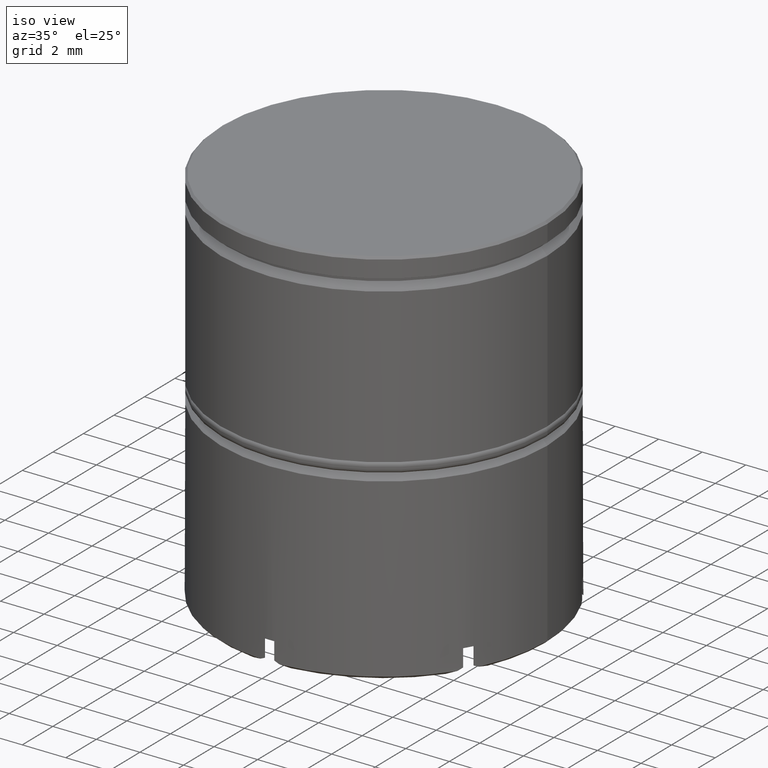
[diagram: clean part render]
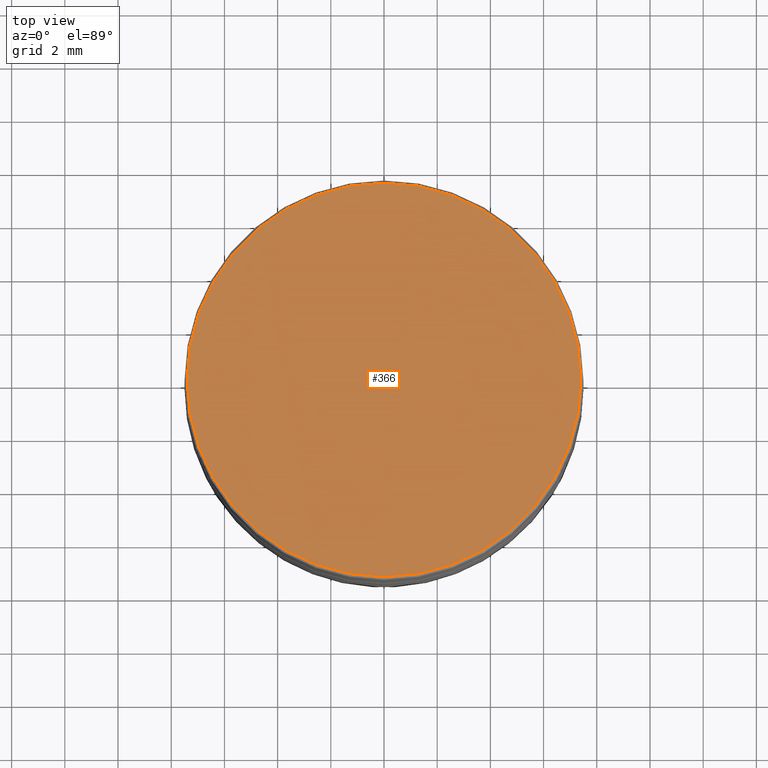
[diagram: tour spotlight — one face highlighted and labeled with its STEP entity id]
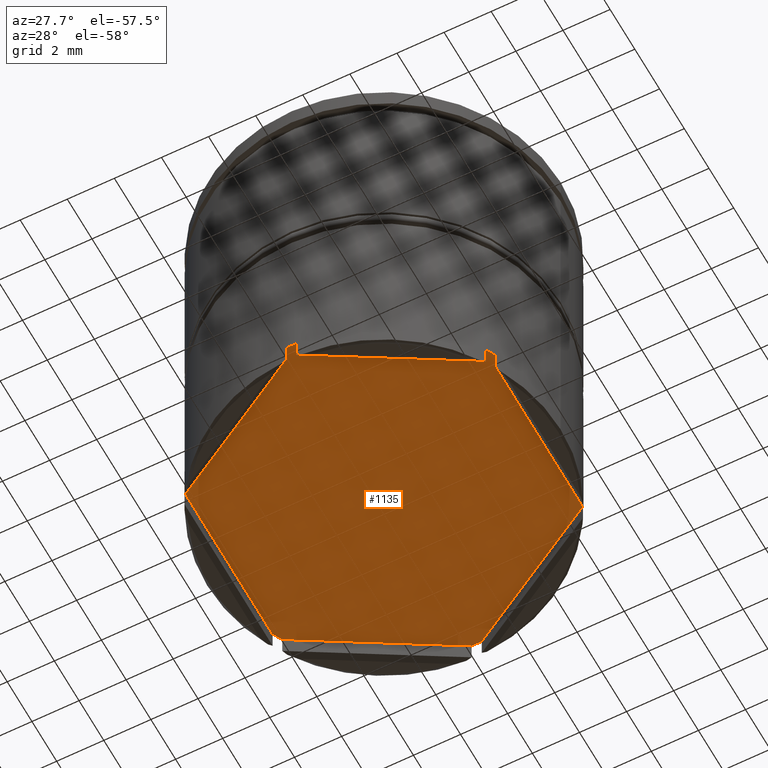
[diagram: tour spotlight — one face highlighted and labeled with its STEP entity id]
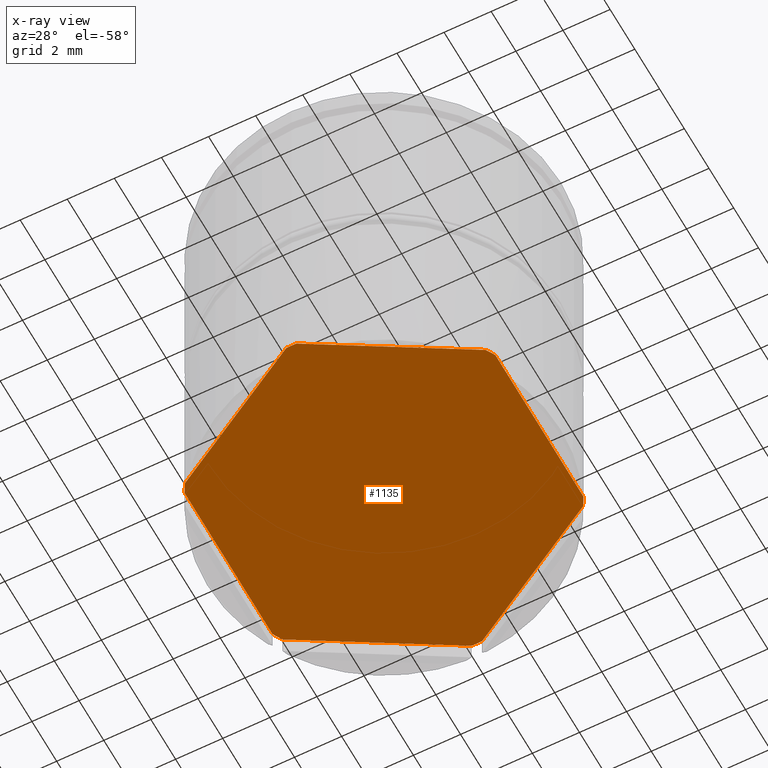
[diagram: x-ray of the same camera — body ghosted, this tour face saturated]
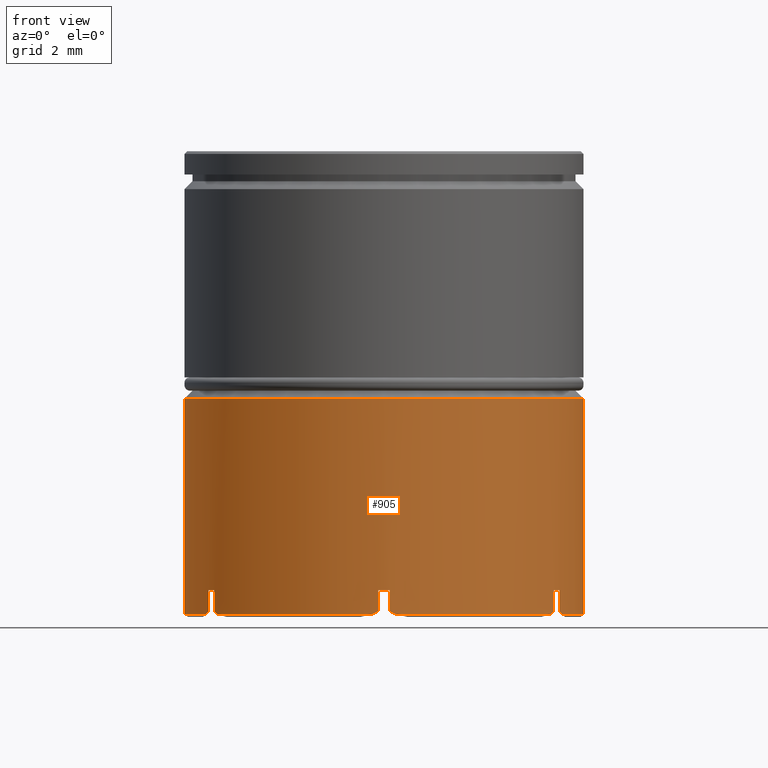
[diagram: tour spotlight — one face highlighted and labeled with its STEP entity id]
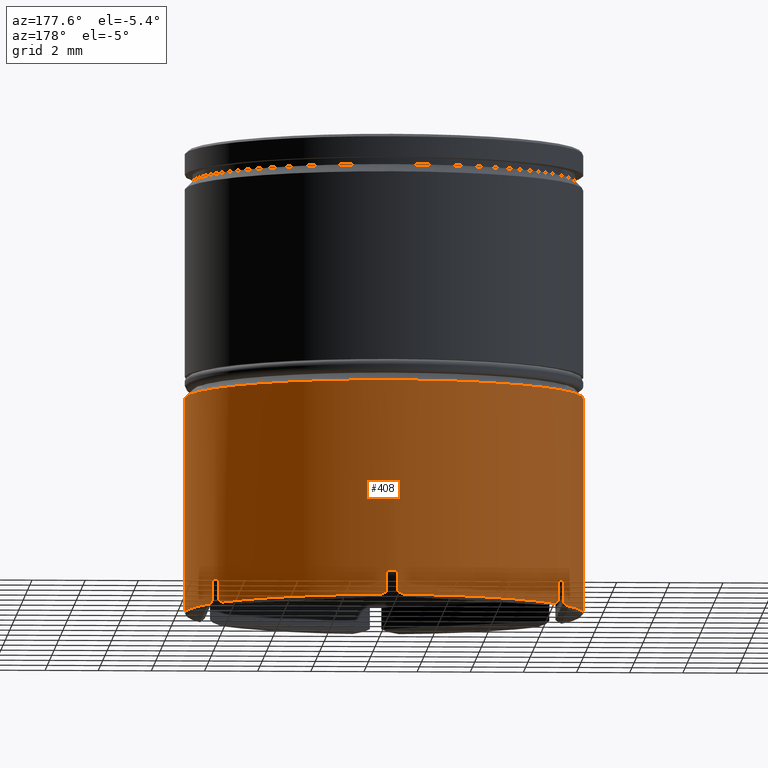
[diagram: tour spotlight — one face highlighted and labeled with its STEP entity id]
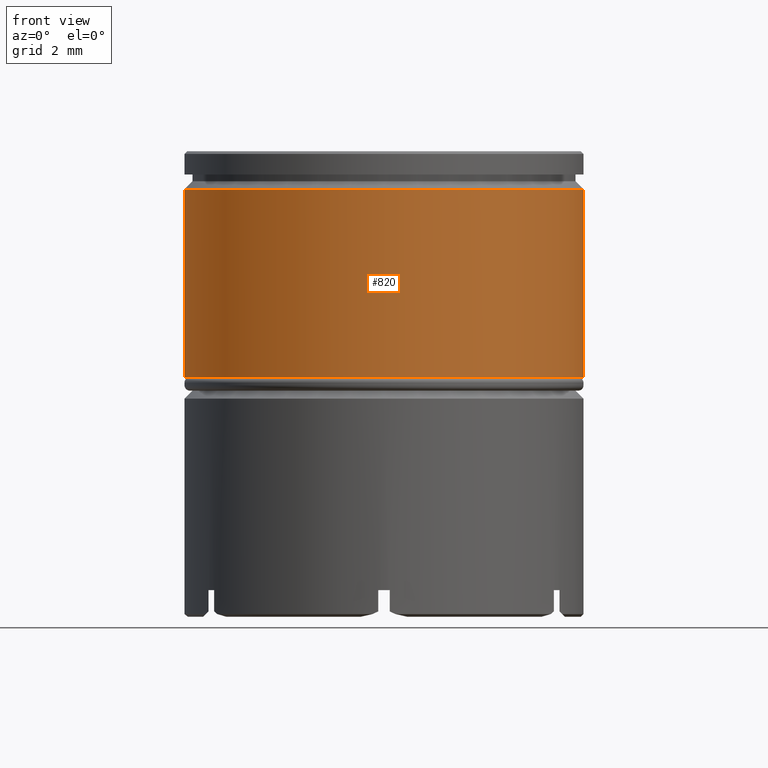
[diagram: tour spotlight — one face highlighted and labeled with its STEP entity id]
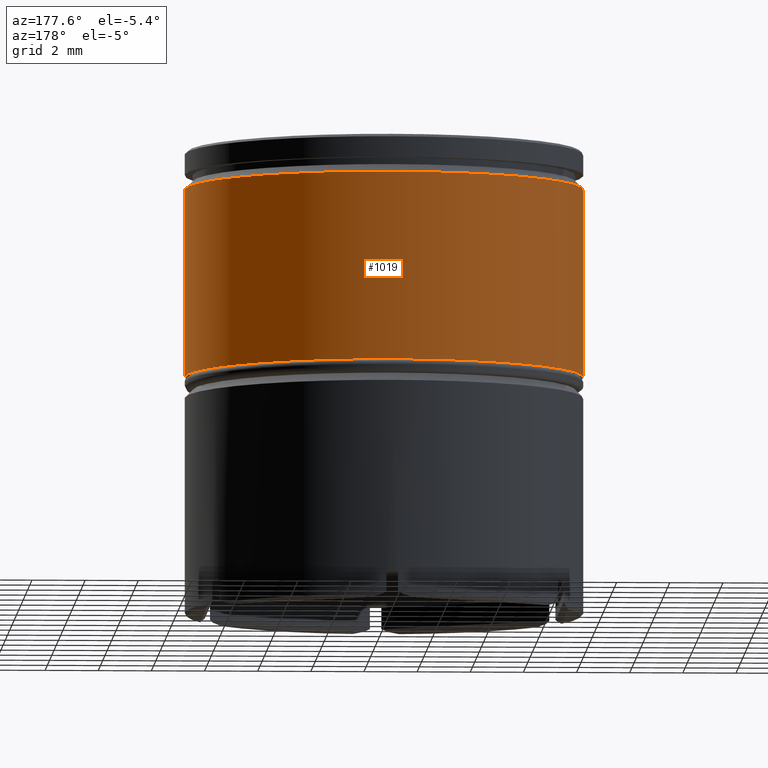
[diagram: tour spotlight — one face highlighted and labeled with its STEP entity id]
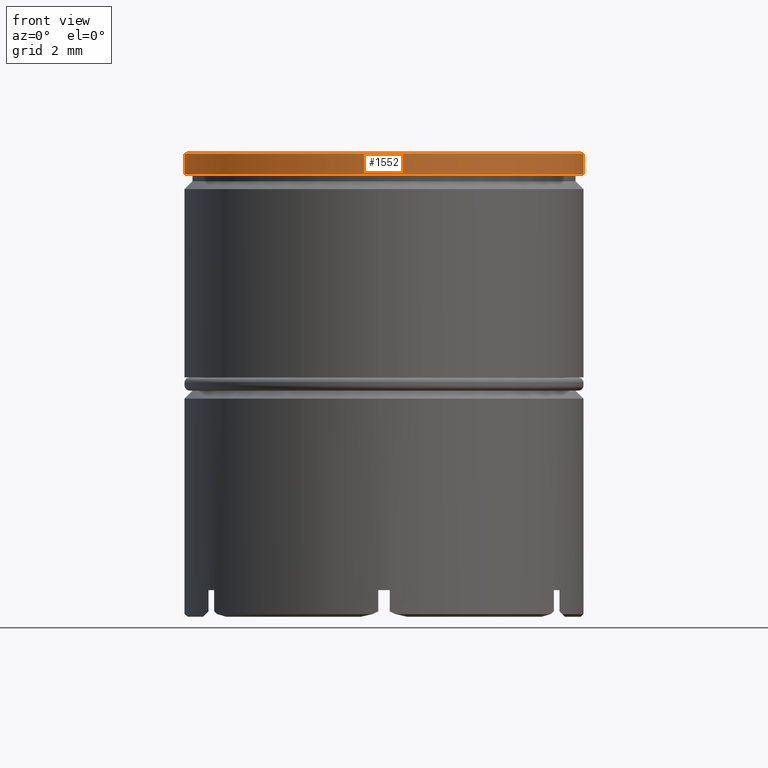
[diagram: tour spotlight — one face highlighted and labeled with its STEP entity id]
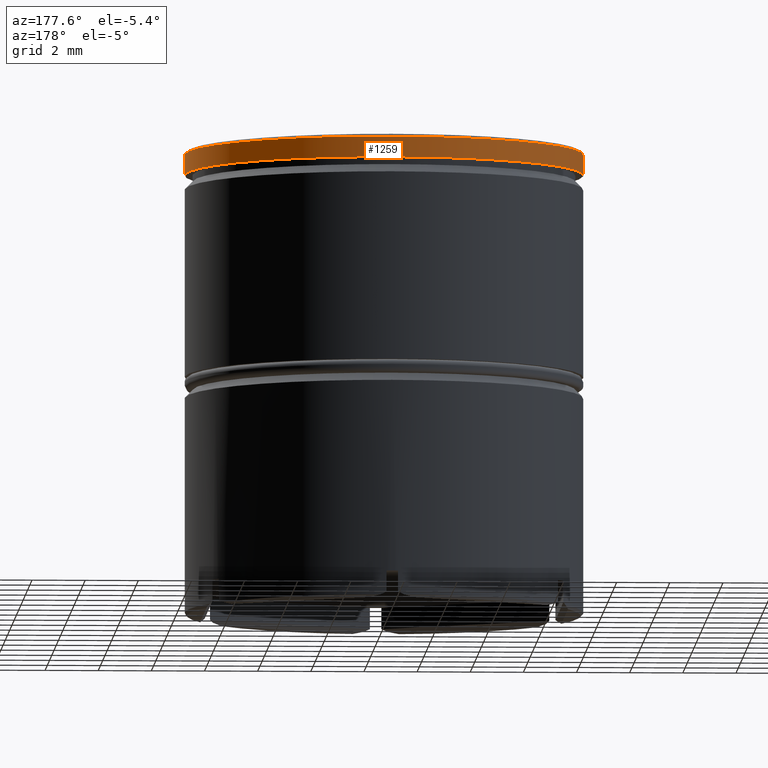
[diagram: tour spotlight — one face highlighted and labeled with its STEP entity id]
A machine part: a face-by-face anatomy tour. The part has 53 B-rep faces; the first image is the clean iso view, then the 8 largest visible faces are spotlighted one at a time (largest first), each with its STEP entity span.

Face 1 — top view, entity #366. In plain terms, the highlighted planar face has unit normal (0, -0, 1).
Definition (entity closure, byte-faithful):
#46 = CARTESIAN_POINT ( 'NONE',  ( 7.399999999999994138, 9.123618653647777215E-16, 0.000000000000000000 ) ) ;
#215 = AXIS2_PLACEMENT_3D ( 'NONE', #1554, #1435, #1331 ) ;
#218 = AXIS2_PLACEMENT_3D ( 'NONE', #1272, #365, #649 ) ;
#224 = PLANE ( 'NONE',  #1382 ) ;
#284 = ORIENTED_EDGE ( 'NONE', *, *, #302, .T. ) ;
#302 = EDGE_CURVE ( 'NONE', #644, #780, #645, .T. ) ;
#361 = DIRECTION ( 'NONE',  ( 0.000000000000000000, -0.000000000000000000, 1.000000000000000000 ) ) ;
#365 = DIRECTION ( 'NONE',  ( -0.000000000000000000, -0.000000000000000000, 1.000000000000000000 ) ) ;
#366 = ADVANCED_FACE ( 'NONE', ( #466 ), #224, .T. ) ;
#466 = FACE_OUTER_BOUND ( 'NONE', #1115, .T. ) ;
#644 = VERTEX_POINT ( 'NONE', #46 ) ;
#645 = CIRCLE ( 'NONE', #215, 7.399999999999994138 ) ;
#649 = DIRECTION ( 'NONE',  ( 1.000000000000000000, 0.000000000000000000, 0.000000000000000000 ) ) ;
#780 = VERTEX_POINT ( 'NONE', #1043 ) ;
#1016 = EDGE_CURVE ( 'NONE', #780, #644, #1438, .T. ) ;
#1043 = CARTESIAN_POINT ( 'NONE',  ( -7.399999999999994138, 0.000000000000000000, 0.000000000000000000 ) ) ;
#1115 = EDGE_LOOP ( 'NONE', ( #1591, #284 ) ) ;
#1272 = CARTESIAN_POINT ( 'NONE',  ( 0.000000000000000000, 0.000000000000000000, 0.000000000000000000 ) ) ;
#1331 = DIRECTION ( 'NONE',  ( 1.000000000000000000, 0.000000000000000000, 0.000000000000000000 ) ) ;
#1350 = CARTESIAN_POINT ( 'NONE',  ( 0.000000000000000000, 0.000000000000000000, 0.000000000000000000 ) ) ;
#1382 = AXIS2_PLACEMENT_3D ( 'NONE', #1350, #361, #1455 ) ;
#1435 = DIRECTION ( 'NONE',  ( -0.000000000000000000, -0.000000000000000000, 1.000000000000000000 ) ) ;
#1438 = CIRCLE ( 'NONE', #218, 7.399999999999994138 ) ;
#1455 = DIRECTION ( 'NONE',  ( 1.000000000000000000, 0.000000000000000000, 0.000000000000000000 ) ) ;
#1554 = CARTESIAN_POINT ( 'NONE',  ( 0.000000000000000000, 0.000000000000000000, 0.000000000000000000 ) ) ;
#1591 = ORIENTED_EDGE ( 'NONE', *, *, #1016, .T. ) ;

Face 2 — auxiliary view, entity #1135. An x-ray twin of the same camera follows (body ghosted, this face saturated) — the face is partly hidden behind the body. In plain terms, the highlighted planar face has unit normal (0, 0, -1).
Definition (entity closure, byte-faithful):
#16 = EDGE_CURVE ( 'NONE', #146, #213, #191, .T. ) ;
#38 = DIRECTION ( 'NONE',  ( -0.000000000000000000, -0.000000000000000000, 1.000000000000000000 ) ) ;
#40 = LINE ( 'NONE', #930, #402 ) ;
#63 = CARTESIAN_POINT ( 'NONE',  ( 6.600000000000004974, 3.810511776651531957, -16.50000000000000000 ) ) ;
#80 = CARTESIAN_POINT ( 'NONE',  ( 0.2149554298195399393, -7.496918978032981684, -16.50000000000000000 ) ) ;
#91 = ORIENTED_EDGE ( 'NONE', *, *, #1453, .T. ) ;
#95 = VERTEX_POINT ( 'NONE', #1004 ) ;
#99 = CARTESIAN_POINT ( 'NONE',  ( 6.600000000000005862, -3.810511776651533733, -16.50000000000000000 ) ) ;
#108 = CARTESIAN_POINT ( 'NONE',  ( 0.000000000000000000, 0.000000000000000000, -16.50000000000000000 ) ) ;
#128 = EDGE_CURVE ( 'NONE', #95, #1097, #628, .T. ) ;
#142 = AXIS2_PLACEMENT_3D ( 'NONE', #435, #426, #924 ) ;
#146 = VERTEX_POINT ( 'NONE', #781 ) ;
#163 = LINE ( 'NONE', #99, #806 ) ;
#166 = DIRECTION ( 'NONE',  ( -1.000000000000000000, 0.000000000000000000, 0.000000000000000000 ) ) ;
#181 = CARTESIAN_POINT ( 'NONE',  ( -4.310144132208485433E-16, -7.621023553303065690, -16.50000000000000000 ) ) ;
#190 = CARTESIAN_POINT ( 'NONE',  ( -0.2149554298195403834, -7.496918978032981684, -16.50000000000000000 ) ) ;
#191 = LINE ( 'NONE', #63, #1308 ) ;
#194 = CARTESIAN_POINT ( 'NONE',  ( 0.000000000000000000, 0.000000000000000000, -16.50000000000000000 ) ) ;
#213 = VERTEX_POINT ( 'NONE', #1418 ) ;
#227 = ORIENTED_EDGE ( 'NONE', *, *, #691, .F. ) ;
#271 = CARTESIAN_POINT ( 'NONE',  ( -6.600000000000003197, -3.562302626111366610, -16.50000000000000000 ) ) ;
#276 = CARTESIAN_POINT ( 'NONE',  ( 0.000000000000000000, 0.000000000000000000, -16.50000000000000000 ) ) ;
#296 = VERTEX_POINT ( 'NONE', #431 ) ;
#298 = CIRCLE ( 'NONE', #1231, 7.500000000000000000 ) ;
#309 = CIRCLE ( 'NONE', #840, 7.500000000000000000 ) ;
#322 = DIRECTION ( 'NONE',  ( -0.000000000000000000, -0.000000000000000000, 1.000000000000000000 ) ) ;
#334 = EDGE_CURVE ( 'NONE', #1579, #474, #40, .T. ) ;
#385 = ORIENTED_EDGE ( 'NONE', *, *, #970, .F. ) ;
#388 = CARTESIAN_POINT ( 'NONE',  ( 0.000000000000000000, 0.000000000000000000, -16.50000000000000000 ) ) ;
#402 = VECTOR ( 'NONE', #424, 1000.000000000000000 ) ;
#416 = CARTESIAN_POINT ( 'NONE',  ( 6.385044570180465229, 3.934616351921614186, -16.50000000000000000 ) ) ;
#424 = DIRECTION ( 'NONE',  ( 0.000000000000000000, 1.000000000000000000, 0.000000000000000000 ) ) ;
#426 = DIRECTION ( 'NONE',  ( 0.000000000000000000, 0.000000000000000000, -1.000000000000000000 ) ) ;
#431 = CARTESIAN_POINT ( 'NONE',  ( -0.2149554298195408275, 7.496918978032982572, -16.50000000000000000 ) ) ;
#435 = CARTESIAN_POINT ( 'NONE',  ( 0.000000000000000000, 0.000000000000000000, -16.50000000000000000 ) ) ;
#444 = ORIENTED_EDGE ( 'NONE', *, *, #1183, .T. ) ;
#474 = VERTEX_POINT ( 'NONE', #706 ) ;
#481 = CARTESIAN_POINT ( 'NONE',  ( 0.000000000000000000, 0.000000000000000000, -16.50000000000000000 ) ) ;
#487 = ORIENTED_EDGE ( 'NONE', *, *, #334, .T. ) ;
#531 = ORIENTED_EDGE ( 'NONE', *, *, #818, .F. ) ;
#547 = PLANE ( 'NONE',  #142 ) ;
#609 = DIRECTION ( 'NONE',  ( -0.000000000000000000, -0.000000000000000000, 1.000000000000000000 ) ) ;
#628 = LINE ( 'NONE', #753, #643 ) ;
#643 = VECTOR ( 'NONE', #1409, 1000.000000000000000 ) ;
#670 = FACE_OUTER_BOUND ( 'NONE', #1532, .T. ) ;
#682 = VECTOR ( 'NONE', #1210, 1000.000000000000114 ) ;
#685 = AXIS2_PLACEMENT_3D ( 'NONE', #276, #1058, #786 ) ;
#691 = EDGE_CURVE ( 'NONE', #146, #1097, #745, .T. ) ;
#700 = EDGE_CURVE ( 'NONE', #1440, #1528, #1187, .T. ) ;
#702 = CARTESIAN_POINT ( 'NONE',  ( -6.385044570180463452, 3.934616351921620403, -16.50000000000000000 ) ) ;
#706 = CARTESIAN_POINT ( 'NONE',  ( -6.600000000000003197, 3.562302626111366610, -16.50000000000000000 ) ) ;
#713 = VERTEX_POINT ( 'NONE', #1325 ) ;
#724 = AXIS2_PLACEMENT_3D ( 'NONE', #1329, #38, #166 ) ;
#745 = CIRCLE ( 'NONE', #724, 7.500000000000000000 ) ;
#753 = CARTESIAN_POINT ( 'NONE',  ( 0.000000000000000000, 7.621023553303065690, -16.50000000000000000 ) ) ;
#761 = ORIENTED_EDGE ( 'NONE', *, *, #1280, .F. ) ;
#781 = CARTESIAN_POINT ( 'NONE',  ( 6.600000000000003197, 3.562302626111367498, -16.50000000000000000 ) ) ;
#786 = DIRECTION ( 'NONE',  ( -1.000000000000000000, 0.000000000000000000, 0.000000000000000000 ) ) ;
#787 = DIRECTION ( 'NONE',  ( -0.8660254037844385966, 0.5000000000000001110, 0.000000000000000000 ) ) ;
#806 = VECTOR ( 'NONE', #983, 1000.000000000000000 ) ;
#818 = EDGE_CURVE ( 'NONE', #95, #296, #1256, .T. ) ;
#839 = ORIENTED_EDGE ( 'NONE', *, *, #128, .T. ) ;
#840 = AXIS2_PLACEMENT_3D ( 'NONE', #108, #1380, #864 ) ;
#843 = EDGE_CURVE ( 'NONE', #1579, #1528, #1458, .T. ) ;
#864 = DIRECTION ( 'NONE',  ( -1.000000000000000000, 0.000000000000000000, 0.000000000000000000 ) ) ;
#886 = VECTOR ( 'NONE', #787, 1000.000000000000000 ) ;
#914 = AXIS2_PLACEMENT_3D ( 'NONE', #194, #322, #965 ) ;
#923 = CIRCLE ( 'NONE', #685, 7.500000000000000000 ) ;
#924 = DIRECTION ( 'NONE',  ( -1.000000000000000000, 0.000000000000000000, -0.000000000000000000 ) ) ;
#930 = CARTESIAN_POINT ( 'NONE',  ( -6.600000000000004974, -3.810511776651531513, -16.50000000000000000 ) ) ;
#965 = DIRECTION ( 'NONE',  ( -1.000000000000000000, 7.283063041541026905E-14, 0.000000000000000000 ) ) ;
#967 = AXIS2_PLACEMENT_3D ( 'NONE', #481, #609, #1600 ) ;
#970 = EDGE_CURVE ( 'NONE', #1444, #474, #298, .T. ) ;
#983 = DIRECTION ( 'NONE',  ( -0.8660254037844387076, -0.4999999999999998335, 0.000000000000000000 ) ) ;
#1004 = CARTESIAN_POINT ( 'NONE',  ( 0.2149554298195403834, 7.496918978032981684, -16.50000000000000000 ) ) ;
#1058 = DIRECTION ( 'NONE',  ( -0.000000000000000000, -0.000000000000000000, 1.000000000000000000 ) ) ;
#1092 = ORIENTED_EDGE ( 'NONE', *, *, #16, .T. ) ;
#1097 = VERTEX_POINT ( 'NONE', #416 ) ;
#1135 = ADVANCED_FACE ( 'NONE', ( #670 ), #547, .T. ) ;
#1183 = EDGE_CURVE ( 'NONE', #713, #1624, #163, .T. ) ;
#1187 = LINE ( 'NONE', #181, #886 ) ;
#1189 = DIRECTION ( 'NONE',  ( 1.138117120255423023E-16, -1.000000000000000000, 0.000000000000000000 ) ) ;
#1210 = DIRECTION ( 'NONE',  ( 0.8660254037844387076, 0.4999999999999997780, 0.000000000000000000 ) ) ;
#1231 = AXIS2_PLACEMENT_3D ( 'NONE', #388, #1620, #1263 ) ;
#1256 = CIRCLE ( 'NONE', #914, 7.500000000000000000 ) ;
#1263 = DIRECTION ( 'NONE',  ( -1.000000000000000000, -5.595524044110788964E-14, 0.000000000000000000 ) ) ;
#1280 = EDGE_CURVE ( 'NONE', #1440, #1624, #309, .T. ) ;
#1308 = VECTOR ( 'NONE', #1189, 1000.000000000000000 ) ;
#1325 = CARTESIAN_POINT ( 'NONE',  ( 6.385044570180463452, -3.934616351921617738, -16.50000000000000000 ) ) ;
#1329 = CARTESIAN_POINT ( 'NONE',  ( 0.000000000000000000, 0.000000000000000000, -16.50000000000000000 ) ) ;
#1380 = DIRECTION ( 'NONE',  ( -0.000000000000000000, -0.000000000000000000, 1.000000000000000000 ) ) ;
#1409 = DIRECTION ( 'NONE',  ( 0.8660254037844385966, -0.5000000000000001110, 0.000000000000000000 ) ) ;
#1417 = ORIENTED_EDGE ( 'NONE', *, *, #700, .T. ) ;
#1418 = CARTESIAN_POINT ( 'NONE',  ( 6.600000000000003197, -3.562302626111365722, -16.50000000000000000 ) ) ;
#1440 = VERTEX_POINT ( 'NONE', #190 ) ;
#1444 = VERTEX_POINT ( 'NONE', #702 ) ;
#1453 = EDGE_CURVE ( 'NONE', #1444, #296, #1594, .T. ) ;
#1454 = ORIENTED_EDGE ( 'NONE', *, *, #843, .F. ) ;
#1458 = CIRCLE ( 'NONE', #967, 7.500000000000000000 ) ;
#1470 = CARTESIAN_POINT ( 'NONE',  ( -6.600000000000004974, 3.810511776651534621, -16.50000000000000000 ) ) ;
#1528 = VERTEX_POINT ( 'NONE', #1559 ) ;
#1532 = EDGE_LOOP ( 'NONE', ( #487, #385, #91, #531, #839, #227, #1092, #1571, #444, #761, #1417, #1454 ) ) ;
#1559 = CARTESIAN_POINT ( 'NONE',  ( -6.385044570180465229, -3.934616351921614186, -16.50000000000000000 ) ) ;
#1571 = ORIENTED_EDGE ( 'NONE', *, *, #1581, .F. ) ;
#1579 = VERTEX_POINT ( 'NONE', #271 ) ;
#1581 = EDGE_CURVE ( 'NONE', #713, #213, #923, .T. ) ;
#1594 = LINE ( 'NONE', #1470, #682 ) ;
#1600 = DIRECTION ( 'NONE',  ( -1.000000000000000000, 0.000000000000000000, 0.000000000000000000 ) ) ;
#1620 = DIRECTION ( 'NONE',  ( -0.000000000000000000, -0.000000000000000000, 1.000000000000000000 ) ) ;
#1624 = VERTEX_POINT ( 'NONE', #80 ) ;

Face 3 — front view, entity #905. In plain terms, the highlighted cylindrical surface (partial cylindrical patch) has radius 7.5 mm, axis along (-0, -0, 1).
Definition (entity closure, byte-faithful):
#3 = VERTEX_POINT ( 'NONE', #1071 ) ;
#15 = CIRCLE ( 'NONE', #221, 7.500000000000000000 ) ;
#21 = CIRCLE ( 'NONE', #1161, 7.500000000000000000 ) ;
#27 = CARTESIAN_POINT ( 'NONE',  ( -6.600000000000004974, -3.562302626111364834, -17.30000000000000426 ) ) ;
#37 = VERTEX_POINT ( 'NONE', #42 ) ;
#41 = VECTOR ( 'NONE', #565, 1000.000000000000000 ) ;
#42 = CARTESIAN_POINT ( 'NONE',  ( -0.4310960961347485298, -7.487600159991007587, -17.40000000000000568 ) ) ;
#48 = CARTESIAN_POINT ( 'NONE',  ( 0.4310960961347314324, -7.487600159991010251, -17.40000000000000568 ) ) ;
#53 =( BOUNDED_CURVE ( )  B_SPLINE_CURVE ( 3, ( #138, #1422, #1391, #1156 ),
 .UNSPECIFIED., .F., .T. ) 
 B_SPLINE_CURVE_WITH_KNOTS ( ( 4, 4 ),
 ( 2.646658527248899606, 2.675505055610964078 ),
 .UNSPECIFIED. ) 
 CURVE ( )  GEOMETRIC_REPRESENTATION_ITEM ( )  RATIONAL_B_SPLINE_CURVE ( ( 1.000000000000000000, 0.9999306576855770956, 0.9999306576855770956, 1.000000000000000000 ) ) 
 REPRESENTATION_ITEM ( '' )  );
#54 = CARTESIAN_POINT ( 'NONE',  ( -6.600000000000004974, -3.562302626111364834, 0.000000000000000000 ) ) ;
#70 = CARTESIAN_POINT ( 'NONE',  ( 0.000000000000000000, 0.000000000000000000, -17.40000000000000568 ) ) ;
#71 = CARTESIAN_POINT ( 'NONE',  ( 0.000000000000000000, 0.000000000000000000, -17.40000000000000568 ) ) ;
#73 = AXIS2_PLACEMENT_3D ( 'NONE', #71, #1185, #1289 ) ;
#75 = VECTOR ( 'NONE', #534, 1000.000000000000000 ) ;
#76 = CARTESIAN_POINT ( 'NONE',  ( 0.000000000000000000, 0.000000000000000000, -9.299999999999998934 ) ) ;
#78 = FACE_OUTER_BOUND ( 'NONE', #559, .T. ) ;
#80 = CARTESIAN_POINT ( 'NONE',  ( 0.2149554298195399393, -7.496918978032981684, -16.50000000000000000 ) ) ;
#85 = EDGE_CURVE ( 'NONE', #1440, #601, #1322, .T. ) ;
#108 = CARTESIAN_POINT ( 'NONE',  ( 0.000000000000000000, 0.000000000000000000, -16.50000000000000000 ) ) ;
#138 = CARTESIAN_POINT ( 'NONE',  ( 6.600000000000004974, -3.562302626111363946, -17.30000000000000426 ) ) ;
#169 = DIRECTION ( 'NONE',  ( -0.000000000000000000, -0.000000000000000000, 1.000000000000000000 ) ) ;
#178 = CARTESIAN_POINT ( 'NONE',  ( -0.2149554298195403834, -7.496918978032981684, 0.000000000000000000 ) ) ;
#186 = CIRCLE ( 'NONE', #350, 7.500000000000000000 ) ;
#188 = ORIENTED_EDGE ( 'NONE', *, *, #323, .T. ) ;
#190 = CARTESIAN_POINT ( 'NONE',  ( -0.2149554298195403834, -7.496918978032981684, -16.50000000000000000 ) ) ;
#204 = CARTESIAN_POINT ( 'NONE',  ( 0.000000000000000000, 0.000000000000000000, 0.000000000000000000 ) ) ;
#213 = VERTEX_POINT ( 'NONE', #1418 ) ;
#221 = AXIS2_PLACEMENT_3D ( 'NONE', #76, #964, #696 ) ;
#252 = LINE ( 'NONE', #1403, #75 ) ;
#258 =( BOUNDED_CURVE ( )  B_SPLINE_CURVE ( 3, ( #1478, #851, #1462, #833 ),
 .UNSPECIFIED., .F., .T. ) 
 B_SPLINE_CURVE_WITH_KNOTS ( ( 4, 4 ),
 ( 3.607680251568622598, 3.636526779930687070 ),
 .UNSPECIFIED. ) 
 CURVE ( )  GEOMETRIC_REPRESENTATION_ITEM ( )  RATIONAL_B_SPLINE_CURVE ( ( 1.000000000000000000, 0.9999306576855770956, 0.9999306576855770956, 1.000000000000000000 ) ) 
 REPRESENTATION_ITEM ( '' )  );
#263 = ORIENTED_EDGE ( 'NONE', *, *, #1562, .T. ) ;
#271 = CARTESIAN_POINT ( 'NONE',  ( -6.600000000000003197, -3.562302626111366610, -16.50000000000000000 ) ) ;
#276 = CARTESIAN_POINT ( 'NONE',  ( 0.000000000000000000, 0.000000000000000000, -16.50000000000000000 ) ) ;
#290 = CARTESIAN_POINT ( 'NONE',  ( 0.2149554298195399393, -7.496918978032980796, -17.30000000000000426 ) ) ;
#304 = EDGE_CURVE ( 'NONE', #937, #647, #808, .T. ) ;
#309 = CIRCLE ( 'NONE', #840, 7.500000000000000000 ) ;
#323 = EDGE_CURVE ( 'NONE', #353, #1033, #186, .T. ) ;
#324 = CARTESIAN_POINT ( 'NONE',  ( 6.268903903865273186, -4.117140250720484396, -17.40000000000000568 ) ) ;
#329 = VECTOR ( 'NONE', #1319, 1000.000000000000000 ) ;
#333 = DIRECTION ( 'NONE',  ( -0.000000000000000000, -0.000000000000000000, 1.000000000000000000 ) ) ;
#337 = EDGE_CURVE ( 'NONE', #1550, #1450, #1634, .T. ) ;
#341 = CARTESIAN_POINT ( 'NONE',  ( -0.3590965096301926285, -7.491745512307133481, -17.36759018716113090 ) ) ;
#347 = EDGE_CURVE ( 'NONE', #1550, #1624, #701, .T. ) ;
#350 = AXIS2_PLACEMENT_3D ( 'NONE', #70, #169, #1087 ) ;
#353 = VERTEX_POINT ( 'NONE', #693 ) ;
#355 = DIRECTION ( 'NONE',  ( -0.000000000000000000, -0.000000000000000000, 1.000000000000000000 ) ) ;
#359 = CARTESIAN_POINT ( 'NONE',  ( 0.000000000000000000, 0.000000000000000000, -17.40000000000000568 ) ) ;
#395 = EDGE_CURVE ( 'NONE', #771, #898, #835, .T. ) ;
#418 = VERTEX_POINT ( 'NONE', #324 ) ;
#419 = CARTESIAN_POINT ( 'NONE',  ( -6.634254542257028042, -3.498838063263952858, -17.33425454225702467 ) ) ;
#457 = DIRECTION ( 'NONE',  ( -0.000000000000000000, -0.000000000000000000, 1.000000000000000000 ) ) ;
#458 = EDGE_CURVE ( 'NONE', #1021, #213, #604, .T. ) ;
#462 = AXIS2_PLACEMENT_3D ( 'NONE', #204, #457, #1459 ) ;
#471 = VERTEX_POINT ( 'NONE', #483 ) ;
#481 = CARTESIAN_POINT ( 'NONE',  ( 0.000000000000000000, 0.000000000000000000, -16.50000000000000000 ) ) ;
#483 = CARTESIAN_POINT ( 'NONE',  ( 7.500000000000000000, 0.000000000000000000, -9.299999999999998934 ) ) ;
#493 = CARTESIAN_POINT ( 'NONE',  ( -6.268903903865268745, -4.117140250720490613, -17.40000000000000568 ) ) ;
#501 = ORIENTED_EDGE ( 'NONE', *, *, #1221, .T. ) ;
#516 = ORIENTED_EDGE ( 'NONE', *, *, #337, .T. ) ;
#529 = ORIENTED_EDGE ( 'NONE', *, *, #865, .T. ) ;
#534 = DIRECTION ( 'NONE',  ( 0.000000000000000000, 0.000000000000000000, -1.000000000000000000 ) ) ;
#542 = CIRCLE ( 'NONE', #944, 7.500000000000000000 ) ;
#556 = DIRECTION ( 'NONE',  ( -0.000000000000000000, -0.000000000000000000, 1.000000000000000000 ) ) ;
#559 = EDGE_LOOP ( 'NONE', ( #1120, #894, #759, #1178, #1384, #1542, #854, #529, #501, #1059, #821, #752, #516, #729, #1113, #627, #1490, #1029, #263, #188, #595, #982 ) ) ;
#565 = DIRECTION ( 'NONE',  ( -0.000000000000000000, -0.000000000000000000, 1.000000000000000000 ) ) ;
#595 = ORIENTED_EDGE ( 'NONE', *, *, #897, .T. ) ;
#601 = VERTEX_POINT ( 'NONE', #1505 ) ;
#604 = LINE ( 'NONE', #1363, #1575 ) ;
#606 = CIRCLE ( 'NONE', #73, 7.500000000000000000 ) ;
#609 = DIRECTION ( 'NONE',  ( -0.000000000000000000, -0.000000000000000000, 1.000000000000000000 ) ) ;
#623 = DIRECTION ( 'NONE',  ( -1.000000000000000000, 0.000000000000000000, 0.000000000000000000 ) ) ;
#627 = ORIENTED_EDGE ( 'NONE', *, *, #1605, .F. ) ;
#647 = VERTEX_POINT ( 'NONE', #666 ) ;
#659 = VERTEX_POINT ( 'NONE', #1176 ) ;
#666 = CARTESIAN_POINT ( 'NONE',  ( -7.500000000000000000, 9.184850993605147944E-16, -9.299999999999998934 ) ) ;
#678 = CARTESIAN_POINT ( 'NONE',  ( 0.2149554298195399393, -7.496918978032980796, 0.000000000000000000 ) ) ;
#685 = AXIS2_PLACEMENT_3D ( 'NONE', #276, #1058, #786 ) ;
#693 = CARTESIAN_POINT ( 'NONE',  ( 6.700000000000007283, -3.370459909270528520, -17.40000000000000568 ) ) ;
#696 = DIRECTION ( 'NONE',  ( 1.000000000000000000, 0.000000000000000000, 0.000000000000000000 ) ) ;
#701 = LINE ( 'NONE', #678, #1332 ) ;
#703 = EDGE_CURVE ( 'NONE', #659, #1151, #779, .T. ) ;
#705 = CARTESIAN_POINT ( 'NONE',  ( -6.268903903865268745, -4.117140250720490613, -17.40000000000000568 ) ) ;
#711 = CARTESIAN_POINT ( 'NONE',  ( -0.2870446246139917723, -7.494852000398866565, -17.33425454225702111 ) ) ;
#713 = VERTEX_POINT ( 'NONE', #1325 ) ;
#714 = DIRECTION ( 'NONE',  ( -0.000000000000000000, -0.000000000000000000, 1.000000000000000000 ) ) ;
#729 = ORIENTED_EDGE ( 'NONE', *, *, #1271, .T. ) ;
#735 = CARTESIAN_POINT ( 'NONE',  ( -6.347209917643039212, -3.996013937134916372, -17.33425454225702111 ) ) ;
#736 = EDGE_CURVE ( 'NONE', #1579, #1151, #1060, .T. ) ;
#752 = ORIENTED_EDGE ( 'NONE', *, *, #347, .F. ) ;
#759 = ORIENTED_EDGE ( 'NONE', *, *, #703, .T. ) ;
#766 = CARTESIAN_POINT ( 'NONE',  ( 0.2149554298195399393, -7.496918978032980796, -17.30000000000000426 ) ) ;
#771 = VERTEX_POINT ( 'NONE', #813 ) ;
#779 =( BOUNDED_CURVE ( )  B_SPLINE_CURVE ( 3, ( #936, #945, #419, #953 ),
 .UNSPECIFIED., .F., .T. ) 
 B_SPLINE_CURVE_WITH_KNOTS ( ( 4, 4 ),
 ( 3.607680251568622598, 3.636526779930687070 ),
 .UNSPECIFIED. ) 
 CURVE ( )  GEOMETRIC_REPRESENTATION_ITEM ( )  RATIONAL_B_SPLINE_CURVE ( ( 1.000000000000000000, 0.9999306576855770956, 0.9999306576855770956, 1.000000000000000000 ) ) 
 REPRESENTATION_ITEM ( '' )  );
#786 = DIRECTION ( 'NONE',  ( -1.000000000000000000, 0.000000000000000000, 0.000000000000000000 ) ) ;
#798 = CARTESIAN_POINT ( 'NONE',  ( 0.2870446246139873314, -7.494852000398865677, -17.33425454225702467 ) ) ;
#808 = LINE ( 'NONE', #1321, #1144 ) ;
#813 = CARTESIAN_POINT ( 'NONE',  ( -6.385044570180465229, -3.934616351921614186, -17.29999999999999716 ) ) ;
#821 = ORIENTED_EDGE ( 'NONE', *, *, #1280, .T. ) ;
#829 = VECTOR ( 'NONE', #333, 1000.000000000000000 ) ;
#833 = CARTESIAN_POINT ( 'NONE',  ( 6.385044570180463452, -3.934616351921618627, -17.30000000000000426 ) ) ;
#835 =( BOUNDED_CURVE ( )  B_SPLINE_CURVE ( 3, ( #1233, #735, #1461, #493 ),
 .UNSPECIFIED., .F., .T. ) 
 B_SPLINE_CURVE_WITH_KNOTS ( ( 4, 4 ),
 ( 2.646658527248899606, 2.675505055610965410 ),
 .UNSPECIFIED. ) 
 CURVE ( )  GEOMETRIC_REPRESENTATION_ITEM ( )  RATIONAL_B_SPLINE_CURVE ( ( 1.000000000000000000, 0.9999306576855770956, 0.9999306576855770956, 1.000000000000000000 ) ) 
 REPRESENTATION_ITEM ( '' )  );
#840 = AXIS2_PLACEMENT_3D ( 'NONE', #108, #1380, #864 ) ;
#843 = EDGE_CURVE ( 'NONE', #1579, #1528, #1458, .T. ) ;
#851 = CARTESIAN_POINT ( 'NONE',  ( 6.308493677530949917, -4.056859455903630618, -17.36759018716113090 ) ) ;
#854 = ORIENTED_EDGE ( 'NONE', *, *, #395, .T. ) ;
#864 = DIRECTION ( 'NONE',  ( -1.000000000000000000, 0.000000000000000000, 0.000000000000000000 ) ) ;
#865 = EDGE_CURVE ( 'NONE', #898, #37, #542, .T. ) ;
#894 = ORIENTED_EDGE ( 'NONE', *, *, #1482, .T. ) ;
#897 = EDGE_CURVE ( 'NONE', #1033, #471, #1467, .T. ) ;
#898 = VERTEX_POINT ( 'NONE', #705 ) ;
#905 = ADVANCED_FACE ( 'NONE', ( #78 ), #1091, .T. ) ;
#907 = CARTESIAN_POINT ( 'NONE',  ( -7.500000000000000000, 9.184850993605147944E-16, -17.40000000000000568 ) ) ;
#923 = CIRCLE ( 'NONE', #685, 7.500000000000000000 ) ;
#936 = CARTESIAN_POINT ( 'NONE',  ( -6.700000000000007283, -3.370459909270528076, -17.40000000000000568 ) ) ;
#937 = VERTEX_POINT ( 'NONE', #907 ) ;
#944 = AXIS2_PLACEMENT_3D ( 'NONE', #359, #1452, #1487 ) ;
#945 = CARTESIAN_POINT ( 'NONE',  ( -6.667590187161133386, -3.434886056403505972, -17.36759018716113090 ) ) ;
#953 = CARTESIAN_POINT ( 'NONE',  ( -6.600000000000004974, -3.562302626111364834, -17.30000000000000426 ) ) ;
#957 =( BOUNDED_CURVE ( )  B_SPLINE_CURVE ( 3, ( #1465, #341, #711, #1204 ),
 .UNSPECIFIED., .F., .T. ) 
 B_SPLINE_CURVE_WITH_KNOTS ( ( 4, 4 ),
 ( 3.607680251568620822, 3.636526779930687070 ),
 .UNSPECIFIED. ) 
 CURVE ( )  GEOMETRIC_REPRESENTATION_ITEM ( )  RATIONAL_B_SPLINE_CURVE ( ( 1.000000000000000000, 0.9999306576855770956, 0.9999306576855770956, 1.000000000000000000 ) ) 
 REPRESENTATION_ITEM ( '' )  );
#964 = DIRECTION ( 'NONE',  ( 0.000000000000000000, 0.000000000000000000, -1.000000000000000000 ) ) ;
#967 = AXIS2_PLACEMENT_3D ( 'NONE', #481, #609, #1600 ) ;
#980 = CARTESIAN_POINT ( 'NONE',  ( 0.4310960961347314324, -7.487600159991010251, -17.40000000000000568 ) ) ;
#982 = ORIENTED_EDGE ( 'NONE', *, *, #1199, .T. ) ;
#1021 = VERTEX_POINT ( 'NONE', #1122 ) ;
#1029 = ORIENTED_EDGE ( 'NONE', *, *, #458, .F. ) ;
#1033 = VERTEX_POINT ( 'NONE', #1636 ) ;
#1058 = DIRECTION ( 'NONE',  ( -0.000000000000000000, -0.000000000000000000, 1.000000000000000000 ) ) ;
#1059 = ORIENTED_EDGE ( 'NONE', *, *, #85, .F. ) ;
#1060 = LINE ( 'NONE', #54, #329 ) ;
#1071 = CARTESIAN_POINT ( 'NONE',  ( 6.385044570180463452, -3.934616351921618627, -17.30000000000000426 ) ) ;
#1087 = DIRECTION ( 'NONE',  ( -1.000000000000000000, 3.552713678800500929E-15, 0.000000000000000000 ) ) ;
#1090 = EDGE_CURVE ( 'NONE', #771, #1528, #1558, .T. ) ;
#1091 = CYLINDRICAL_SURFACE ( 'NONE', #462, 7.500000000000000000 ) ;
#1113 = ORIENTED_EDGE ( 'NONE', *, *, #1368, .T. ) ;
#1120 = ORIENTED_EDGE ( 'NONE', *, *, #304, .F. ) ;
#1122 = CARTESIAN_POINT ( 'NONE',  ( 6.600000000000004974, -3.562302626111363946, -17.30000000000000426 ) ) ;
#1144 = VECTOR ( 'NONE', #1572, 1000.000000000000000 ) ;
#1151 = VERTEX_POINT ( 'NONE', #27 ) ;
#1156 = CARTESIAN_POINT ( 'NONE',  ( 6.700000000000007283, -3.370459909270528520, -17.40000000000000568 ) ) ;
#1161 = AXIS2_PLACEMENT_3D ( 'NONE', #1484, #355, #623 ) ;
#1176 = CARTESIAN_POINT ( 'NONE',  ( -6.700000000000007283, -3.370459909270528076, -17.40000000000000568 ) ) ;
#1178 = ORIENTED_EDGE ( 'NONE', *, *, #736, .F. ) ;
#1185 = DIRECTION ( 'NONE',  ( -0.000000000000000000, -0.000000000000000000, 1.000000000000000000 ) ) ;
#1197 = CARTESIAN_POINT ( 'NONE',  ( -6.385044570180465229, -3.934616351921614186, 0.000000000000000000 ) ) ;
#1199 = EDGE_CURVE ( 'NONE', #471, #647, #15, .T. ) ;
#1204 = CARTESIAN_POINT ( 'NONE',  ( -0.2149554298195403834, -7.496918978032981684, -17.29999999999999716 ) ) ;
#1221 = EDGE_CURVE ( 'NONE', #37, #601, #957, .T. ) ;
#1233 = CARTESIAN_POINT ( 'NONE',  ( -6.385044570180465229, -3.934616351921614186, -17.29999999999999716 ) ) ;
#1271 = EDGE_CURVE ( 'NONE', #1450, #418, #21, .T. ) ;
#1280 = EDGE_CURVE ( 'NONE', #1440, #1624, #309, .T. ) ;
#1289 = DIRECTION ( 'NONE',  ( -1.000000000000000000, 0.000000000000000000, 0.000000000000000000 ) ) ;
#1319 = DIRECTION ( 'NONE',  ( 0.000000000000000000, 0.000000000000000000, -1.000000000000000000 ) ) ;
#1321 = CARTESIAN_POINT ( 'NONE',  ( -7.500000000000000000, 9.184850993605147944E-16, 0.000000000000000000 ) ) ;
#1322 = LINE ( 'NONE', #178, #1401 ) ;
#1325 = CARTESIAN_POINT ( 'NONE',  ( 6.385044570180463452, -3.934616351921617738, -16.50000000000000000 ) ) ;
#1332 = VECTOR ( 'NONE', #556, 1000.000000000000000 ) ;
#1348 = CARTESIAN_POINT ( 'NONE',  ( 7.500000000000000000, 0.000000000000000000, 0.000000000000000000 ) ) ;
#1363 = CARTESIAN_POINT ( 'NONE',  ( 6.600000000000004974, -3.562302626111363946, 0.000000000000000000 ) ) ;
#1368 = EDGE_CURVE ( 'NONE', #418, #3, #258, .T. ) ;
#1380 = DIRECTION ( 'NONE',  ( -0.000000000000000000, -0.000000000000000000, 1.000000000000000000 ) ) ;
#1384 = ORIENTED_EDGE ( 'NONE', *, *, #843, .T. ) ;
#1391 = CARTESIAN_POINT ( 'NONE',  ( 6.667590187161135162, -3.434886056403503307, -17.36759018716113090 ) ) ;
#1401 = VECTOR ( 'NONE', #1480, 1000.000000000000000 ) ;
#1403 = CARTESIAN_POINT ( 'NONE',  ( 6.385044570180463452, -3.934616351921618627, 0.000000000000000000 ) ) ;
#1418 = CARTESIAN_POINT ( 'NONE',  ( 6.600000000000003197, -3.562302626111365722, -16.50000000000000000 ) ) ;
#1422 = CARTESIAN_POINT ( 'NONE',  ( 6.634254542257028042, -3.498838063263949749, -17.33425454225702467 ) ) ;
#1440 = VERTEX_POINT ( 'NONE', #190 ) ;
#1449 = CARTESIAN_POINT ( 'NONE',  ( 0.3590965096301836357, -7.491745512307135257, -17.36759018716113445 ) ) ;
#1450 = VERTEX_POINT ( 'NONE', #980 ) ;
#1452 = DIRECTION ( 'NONE',  ( -0.000000000000000000, -0.000000000000000000, 1.000000000000000000 ) ) ;
#1458 = CIRCLE ( 'NONE', #967, 7.500000000000000000 ) ;
#1459 = DIRECTION ( 'NONE',  ( 1.000000000000000000, 0.000000000000000000, 0.000000000000000000 ) ) ;
#1461 = CARTESIAN_POINT ( 'NONE',  ( -6.308493677530946364, -4.056859455903635059, -17.36759018716113090 ) ) ;
#1462 = CARTESIAN_POINT ( 'NONE',  ( 6.347209917643040100, -3.996013937134915484, -17.33425454225702467 ) ) ;
#1465 = CARTESIAN_POINT ( 'NONE',  ( -0.4310960961347485298, -7.487600159991007587, -17.40000000000000568 ) ) ;
#1467 = LINE ( 'NONE', #1348, #829 ) ;
#1478 = CARTESIAN_POINT ( 'NONE',  ( 6.268903903865273186, -4.117140250720484396, -17.40000000000000568 ) ) ;
#1480 = DIRECTION ( 'NONE',  ( 0.000000000000000000, 0.000000000000000000, -1.000000000000000000 ) ) ;
#1482 = EDGE_CURVE ( 'NONE', #937, #659, #606, .T. ) ;
#1484 = CARTESIAN_POINT ( 'NONE',  ( 0.000000000000000000, 0.000000000000000000, -17.40000000000000568 ) ) ;
#1487 = DIRECTION ( 'NONE',  ( -1.000000000000000000, 0.000000000000000000, 0.000000000000000000 ) ) ;
#1490 = ORIENTED_EDGE ( 'NONE', *, *, #1581, .T. ) ;
#1505 = CARTESIAN_POINT ( 'NONE',  ( -0.2149554298195403834, -7.496918978032981684, -17.29999999999999716 ) ) ;
#1528 = VERTEX_POINT ( 'NONE', #1559 ) ;
#1542 = ORIENTED_EDGE ( 'NONE', *, *, #1090, .F. ) ;
#1550 = VERTEX_POINT ( 'NONE', #766 ) ;
#1558 = LINE ( 'NONE', #1197, #41 ) ;
#1559 = CARTESIAN_POINT ( 'NONE',  ( -6.385044570180465229, -3.934616351921614186, -16.50000000000000000 ) ) ;
#1562 = EDGE_CURVE ( 'NONE', #1021, #353, #53, .T. ) ;
#1572 = DIRECTION ( 'NONE',  ( -0.000000000000000000, -0.000000000000000000, 1.000000000000000000 ) ) ;
#1575 = VECTOR ( 'NONE', #714, 1000.000000000000000 ) ;
#1579 = VERTEX_POINT ( 'NONE', #271 ) ;
#1581 = EDGE_CURVE ( 'NONE', #713, #213, #923, .T. ) ;
#1600 = DIRECTION ( 'NONE',  ( -1.000000000000000000, 0.000000000000000000, 0.000000000000000000 ) ) ;
#1605 = EDGE_CURVE ( 'NONE', #713, #3, #252, .T. ) ;
#1624 = VERTEX_POINT ( 'NONE', #80 ) ;
#1634 =( BOUNDED_CURVE ( )  B_SPLINE_CURVE ( 3, ( #290, #798, #1449, #48 ),
 .UNSPECIFIED., .F., .T. ) 
 B_SPLINE_CURVE_WITH_KNOTS ( ( 4, 4 ),
 ( 2.646658527248899606, 2.675505055610964078 ),
 .UNSPECIFIED. ) 
 CURVE ( )  GEOMETRIC_REPRESENTATION_ITEM ( )  RATIONAL_B_SPLINE_CURVE ( ( 1.000000000000000000, 0.9999306576855770956, 0.9999306576855770956, 1.000000000000000000 ) ) 
 REPRESENTATION_ITEM ( '' )  );
#1636 = CARTESIAN_POINT ( 'NONE',  ( 7.500000000000000000, 0.000000000000000000, -17.40000000000000568 ) ) ;

Face 4 — auxiliary view, entity #408. In plain terms, the highlighted cylindrical surface (partial cylindrical patch) has radius 7.5 mm, axis along (-0, -0, 1).
Definition (entity closure, byte-faithful):
#24 = VERTEX_POINT ( 'NONE', #450 ) ;
#32 = CARTESIAN_POINT ( 'NONE',  ( -0.3590965096301862447, 7.491745512307136146, -17.36759018716113445 ) ) ;
#38 = DIRECTION ( 'NONE',  ( -0.000000000000000000, -0.000000000000000000, 1.000000000000000000 ) ) ;
#52 = ORIENTED_EDGE ( 'NONE', *, *, #656, .T. ) ;
#61 = CARTESIAN_POINT ( 'NONE',  ( 6.347209917643041877, 3.996013937134915484, -17.33425454225702111 ) ) ;
#69 = VERTEX_POINT ( 'NONE', #546 ) ;
#79 = DIRECTION ( 'NONE',  ( -0.000000000000000000, -0.000000000000000000, 1.000000000000000000 ) ) ;
#86 = CARTESIAN_POINT ( 'NONE',  ( 0.000000000000000000, 0.000000000000000000, -17.40000000000000568 ) ) ;
#89 = CARTESIAN_POINT ( 'NONE',  ( 0.000000000000000000, 0.000000000000000000, -17.40000000000000568 ) ) ;
#95 = VERTEX_POINT ( 'NONE', #1004 ) ;
#107 = ORIENTED_EDGE ( 'NONE', *, *, #818, .T. ) ;
#109 = CARTESIAN_POINT ( 'NONE',  ( -6.600000000000004974, 3.562302626111364834, -17.30000000000000426 ) ) ;
#116 = VERTEX_POINT ( 'NONE', #1036 ) ;
#131 = EDGE_CURVE ( 'NONE', #116, #69, #449, .T. ) ;
#136 = DIRECTION ( 'NONE',  ( 0.000000000000000000, 0.000000000000000000, -1.000000000000000000 ) ) ;
#143 = ORIENTED_EDGE ( 'NONE', *, *, #1194, .T. ) ;
#146 = VERTEX_POINT ( 'NONE', #781 ) ;
#151 = EDGE_CURVE ( 'NONE', #146, #954, #521, .T. ) ;
#161 = EDGE_CURVE ( 'NONE', #116, #296, #1160, .T. ) ;
#166 = DIRECTION ( 'NONE',  ( -1.000000000000000000, 0.000000000000000000, 0.000000000000000000 ) ) ;
#168 = ORIENTED_EDGE ( 'NONE', *, *, #691, .T. ) ;
#182 = EDGE_CURVE ( 'NONE', #1033, #201, #1381, .T. ) ;
#185 = CARTESIAN_POINT ( 'NONE',  ( -6.667590187161131610, 3.434886056403509524, -17.36759018716113090 ) ) ;
#194 = CARTESIAN_POINT ( 'NONE',  ( 0.000000000000000000, 0.000000000000000000, -16.50000000000000000 ) ) ;
#201 = VERTEX_POINT ( 'NONE', #646 ) ;
#202 = CARTESIAN_POINT ( 'NONE',  ( -6.600000000000004974, 3.562302626111364834, -17.30000000000000426 ) ) ;
#209 = EDGE_CURVE ( 'NONE', #201, #954, #325, .T. ) ;
#254 = DIRECTION ( 'NONE',  ( -0.000000000000000000, -0.000000000000000000, 1.000000000000000000 ) ) ;
#257 = VERTEX_POINT ( 'NONE', #571 ) ;
#274 = VERTEX_POINT ( 'NONE', #815 ) ;
#285 = CARTESIAN_POINT ( 'NONE',  ( 0.2149554298195403834, 7.496918978032981684, -17.29999999999999716 ) ) ;
#296 = VERTEX_POINT ( 'NONE', #431 ) ;
#298 = CIRCLE ( 'NONE', #1231, 7.500000000000000000 ) ;
#304 = EDGE_CURVE ( 'NONE', #937, #647, #808, .T. ) ;
#317 = DIRECTION ( 'NONE',  ( 0.000000000000000000, 0.000000000000000000, -1.000000000000000000 ) ) ;
#319 = CARTESIAN_POINT ( 'NONE',  ( 6.308493677530949029, 4.056859455903633283, -17.36759018716113090 ) ) ;
#322 = DIRECTION ( 'NONE',  ( -0.000000000000000000, -0.000000000000000000, 1.000000000000000000 ) ) ;
#325 =( BOUNDED_CURVE ( )  B_SPLINE_CURVE ( 3, ( #1267, #742, #538, #1258 ),
 .UNSPECIFIED., .F., .T. ) 
 B_SPLINE_CURVE_WITH_KNOTS ( ( 4, 4 ),
 ( 3.607680251568622154, 3.636526779930687070 ),
 .UNSPECIFIED. ) 
 CURVE ( )  GEOMETRIC_REPRESENTATION_ITEM ( )  RATIONAL_B_SPLINE_CURVE ( ( 1.000000000000000000, 0.9999306576855770956, 0.9999306576855770956, 1.000000000000000000 ) ) 
 REPRESENTATION_ITEM ( '' )  );
#330 = CARTESIAN_POINT ( 'NONE',  ( -6.700000000000007283, 3.370459909270529408, -17.40000000000000568 ) ) ;
#333 = DIRECTION ( 'NONE',  ( -0.000000000000000000, -0.000000000000000000, 1.000000000000000000 ) ) ;
#339 =( BOUNDED_CURVE ( )  B_SPLINE_CURVE ( 3, ( #448, #61, #319, #822 ),
 .UNSPECIFIED., .F., .T. ) 
 B_SPLINE_CURVE_WITH_KNOTS ( ( 4, 4 ),
 ( 2.646658527248899162, 2.675505055610964966 ),
 .UNSPECIFIED. ) 
 CURVE ( )  GEOMETRIC_REPRESENTATION_ITEM ( )  RATIONAL_B_SPLINE_CURVE ( ( 1.000000000000000000, 0.9999306576855770956, 0.9999306576855770956, 1.000000000000000000 ) ) 
 REPRESENTATION_ITEM ( '' )  );
#343 = DIRECTION ( 'NONE',  ( -0.000000000000000000, -0.000000000000000000, 1.000000000000000000 ) ) ;
#354 = EDGE_CURVE ( 'NONE', #24, #257, #339, .T. ) ;
#368 = ORIENTED_EDGE ( 'NONE', *, *, #304, .T. ) ;
#372 = EDGE_CURVE ( 'NONE', #1357, #716, #1616, .T. ) ;
#377 = ORIENTED_EDGE ( 'NONE', *, *, #182, .T. ) ;
#386 = DIRECTION ( 'NONE',  ( -0.000000000000000000, -0.000000000000000000, 1.000000000000000000 ) ) ;
#388 = CARTESIAN_POINT ( 'NONE',  ( 0.000000000000000000, 0.000000000000000000, -16.50000000000000000 ) ) ;
#392 = CARTESIAN_POINT ( 'NONE',  ( -0.2149554298195408275, 7.496918978032982572, 0.000000000000000000 ) ) ;
#400 = ORIENTED_EDGE ( 'NONE', *, *, #131, .T. ) ;
#406 = VECTOR ( 'NONE', #1110, 1000.000000000000000 ) ;
#408 = ADVANCED_FACE ( 'NONE', ( #868 ), #1622, .T. ) ;
#416 = CARTESIAN_POINT ( 'NONE',  ( 6.385044570180465229, 3.934616351921614186, -16.50000000000000000 ) ) ;
#431 = CARTESIAN_POINT ( 'NONE',  ( -0.2149554298195408275, 7.496918978032982572, -16.50000000000000000 ) ) ;
#448 = CARTESIAN_POINT ( 'NONE',  ( 6.385044570180465229, 3.934616351921614186, -17.29999999999999716 ) ) ;
#449 =( BOUNDED_CURVE ( )  B_SPLINE_CURVE ( 3, ( #1514, #1525, #32, #1276 ),
 .UNSPECIFIED., .F., .T. ) 
 B_SPLINE_CURVE_WITH_KNOTS ( ( 4, 4 ),
 ( 2.646658527248900050, 2.675505055610964522 ),
 .UNSPECIFIED. ) 
 CURVE ( )  GEOMETRIC_REPRESENTATION_ITEM ( )  RATIONAL_B_SPLINE_CURVE ( ( 1.000000000000000000, 0.9999306576855770956, 0.9999306576855770956, 1.000000000000000000 ) ) 
 REPRESENTATION_ITEM ( '' )  );
#450 = CARTESIAN_POINT ( 'NONE',  ( 6.385044570180465229, 3.934616351921614186, -17.29999999999999716 ) ) ;
#455 = CARTESIAN_POINT ( 'NONE',  ( -6.634254542257025378, 3.498838063263955522, -17.33425454225702467 ) ) ;
#460 = CARTESIAN_POINT ( 'NONE',  ( -6.385044570180463452, 3.934616351921620403, -17.30000000000000426 ) ) ;
#461 = AXIS2_PLACEMENT_3D ( 'NONE', #1372, #79, #1248 ) ;
#471 = VERTEX_POINT ( 'NONE', #483 ) ;
#474 = VERTEX_POINT ( 'NONE', #706 ) ;
#479 = EDGE_CURVE ( 'NONE', #24, #1097, #1491, .T. ) ;
#483 = CARTESIAN_POINT ( 'NONE',  ( 7.500000000000000000, 0.000000000000000000, -9.299999999999998934 ) ) ;
#491 = CARTESIAN_POINT ( 'NONE',  ( 0.2149554298195403834, 7.496918978032981684, 0.000000000000000000 ) ) ;
#508 = AXIS2_PLACEMENT_3D ( 'NONE', #770, #386, #1543 ) ;
#511 = VECTOR ( 'NONE', #254, 1000.000000000000000 ) ;
#521 = LINE ( 'NONE', #1284, #1567 ) ;
#522 = ORIENTED_EDGE ( 'NONE', *, *, #151, .F. ) ;
#538 = CARTESIAN_POINT ( 'NONE',  ( 6.634254542257028042, 3.498838063263951970, -17.33425454225702467 ) ) ;
#543 = CARTESIAN_POINT ( 'NONE',  ( 0.4310960961347474196, 7.487600159991008475, -17.40000000000000568 ) ) ;
#546 = CARTESIAN_POINT ( 'NONE',  ( -0.4310960961347331533, 7.487600159991009363, -17.40000000000000568 ) ) ;
#548 = EDGE_CURVE ( 'NONE', #1009, #474, #642, .T. ) ;
#560 = CARTESIAN_POINT ( 'NONE',  ( 0.000000000000000000, 0.000000000000000000, -9.299999999999998934 ) ) ;
#571 = CARTESIAN_POINT ( 'NONE',  ( 6.268903903865270522, 4.117140250720489725, -17.40000000000000568 ) ) ;
#611 = EDGE_CURVE ( 'NONE', #257, #274, #722, .T. ) ;
#618 = CARTESIAN_POINT ( 'NONE',  ( -6.347209917643041877, 3.996013937134917260, -17.33425454225702467 ) ) ;
#626 = CARTESIAN_POINT ( 'NONE',  ( -6.600000000000004974, 3.562302626111364834, 0.000000000000000000 ) ) ;
#634 = CARTESIAN_POINT ( 'NONE',  ( 6.600000000000004974, 3.562302626111365722, -17.30000000000000426 ) ) ;
#642 = LINE ( 'NONE', #626, #511 ) ;
#646 = CARTESIAN_POINT ( 'NONE',  ( 6.700000000000009948, 3.370459909270526300, -17.40000000000000568 ) ) ;
#647 = VERTEX_POINT ( 'NONE', #666 ) ;
#656 = EDGE_CURVE ( 'NONE', #647, #471, #828, .T. ) ;
#666 = CARTESIAN_POINT ( 'NONE',  ( -7.500000000000000000, 9.184850993605147944E-16, -9.299999999999998934 ) ) ;
#674 = ORIENTED_EDGE ( 'NONE', *, *, #799, .T. ) ;
#684 = CARTESIAN_POINT ( 'NONE',  ( 0.3590965096301930726, 7.491745512307133481, -17.36759018716113090 ) ) ;
#691 = EDGE_CURVE ( 'NONE', #146, #1097, #745, .T. ) ;
#702 = CARTESIAN_POINT ( 'NONE',  ( -6.385044570180463452, 3.934616351921620403, -16.50000000000000000 ) ) ;
#706 = CARTESIAN_POINT ( 'NONE',  ( -6.600000000000003197, 3.562302626111366610, -16.50000000000000000 ) ) ;
#712 = LINE ( 'NONE', #1108, #1075 ) ;
#716 = VERTEX_POINT ( 'NONE', #1578 ) ;
#722 = CIRCLE ( 'NONE', #802, 7.500000000000000000 ) ;
#724 = AXIS2_PLACEMENT_3D ( 'NONE', #1329, #38, #166 ) ;
#742 = CARTESIAN_POINT ( 'NONE',  ( 6.667590187161134274, 3.434886056403504639, -17.36759018716113090 ) ) ;
#744 = EDGE_CURVE ( 'NONE', #274, #1166, #1354, .T. ) ;
#745 = CIRCLE ( 'NONE', #724, 7.500000000000000000 ) ;
#770 = CARTESIAN_POINT ( 'NONE',  ( 0.000000000000000000, 0.000000000000000000, -17.40000000000000568 ) ) ;
#773 = VECTOR ( 'NONE', #136, 1000.000000000000000 ) ;
#781 = CARTESIAN_POINT ( 'NONE',  ( 6.600000000000003197, 3.562302626111367498, -16.50000000000000000 ) ) ;
#783 = CIRCLE ( 'NONE', #975, 7.500000000000000000 ) ;
#795 = ORIENTED_EDGE ( 'NONE', *, *, #372, .T. ) ;
#799 = EDGE_CURVE ( 'NONE', #69, #1357, #1489, .T. ) ;
#802 = AXIS2_PLACEMENT_3D ( 'NONE', #1282, #1522, #902 ) ;
#808 = LINE ( 'NONE', #1321, #1144 ) ;
#815 = CARTESIAN_POINT ( 'NONE',  ( 0.4310960961347474196, 7.487600159991008475, -17.40000000000000568 ) ) ;
#818 = EDGE_CURVE ( 'NONE', #95, #296, #1256, .T. ) ;
#822 = CARTESIAN_POINT ( 'NONE',  ( 6.268903903865270522, 4.117140250720489725, -17.40000000000000568 ) ) ;
#827 = DIRECTION ( 'NONE',  ( 0.000000000000000000, 0.000000000000000000, -1.000000000000000000 ) ) ;
#828 = CIRCLE ( 'NONE', #1576, 7.500000000000000000 ) ;
#829 = VECTOR ( 'NONE', #333, 1000.000000000000000 ) ;
#846 = EDGE_CURVE ( 'NONE', #1444, #716, #712, .T. ) ;
#849 = ORIENTED_EDGE ( 'NONE', *, *, #548, .F. ) ;
#850 = CARTESIAN_POINT ( 'NONE',  ( -6.268903903865273186, 4.117140250720484396, -17.40000000000000568 ) ) ;
#868 = FACE_OUTER_BOUND ( 'NONE', #1425, .T. ) ;
#897 = EDGE_CURVE ( 'NONE', #1033, #471, #1467, .T. ) ;
#902 = DIRECTION ( 'NONE',  ( -1.000000000000000000, -8.881784197001252323E-16, 0.000000000000000000 ) ) ;
#907 = CARTESIAN_POINT ( 'NONE',  ( -7.500000000000000000, 9.184850993605147944E-16, -17.40000000000000568 ) ) ;
#914 = AXIS2_PLACEMENT_3D ( 'NONE', #194, #322, #965 ) ;
#935 = ORIENTED_EDGE ( 'NONE', *, *, #846, .F. ) ;
#937 = VERTEX_POINT ( 'NONE', #907 ) ;
#954 = VERTEX_POINT ( 'NONE', #634 ) ;
#965 = DIRECTION ( 'NONE',  ( -1.000000000000000000, 7.283063041541026905E-14, 0.000000000000000000 ) ) ;
#970 = EDGE_CURVE ( 'NONE', #1444, #474, #298, .T. ) ;
#975 = AXIS2_PLACEMENT_3D ( 'NONE', #89, #1351, #1105 ) ;
#976 = ORIENTED_EDGE ( 'NONE', *, *, #161, .F. ) ;
#997 = ORIENTED_EDGE ( 'NONE', *, *, #209, .T. ) ;
#1004 = CARTESIAN_POINT ( 'NONE',  ( 0.2149554298195403834, 7.496918978032981684, -16.50000000000000000 ) ) ;
#1009 = VERTEX_POINT ( 'NONE', #109 ) ;
#1026 = EDGE_CURVE ( 'NONE', #95, #1166, #1136, .T. ) ;
#1033 = VERTEX_POINT ( 'NONE', #1636 ) ;
#1036 = CARTESIAN_POINT ( 'NONE',  ( -0.2149554298195408275, 7.496918978032982572, -17.30000000000000426 ) ) ;
#1045 = DIRECTION ( 'NONE',  ( -0.000000000000000000, -0.000000000000000000, 1.000000000000000000 ) ) ;
#1075 = VECTOR ( 'NONE', #827, 1000.000000000000000 ) ;
#1088 = CARTESIAN_POINT ( 'NONE',  ( -6.268903903865273186, 4.117140250720484396, -17.40000000000000568 ) ) ;
#1097 = VERTEX_POINT ( 'NONE', #416 ) ;
#1105 = DIRECTION ( 'NONE',  ( -1.000000000000000000, -3.552713678800500929E-15, 0.000000000000000000 ) ) ;
#1108 = CARTESIAN_POINT ( 'NONE',  ( -6.385044570180463452, 3.934616351921620403, 0.000000000000000000 ) ) ;
#1110 = DIRECTION ( 'NONE',  ( -0.000000000000000000, -0.000000000000000000, 1.000000000000000000 ) ) ;
#1136 = LINE ( 'NONE', #491, #773 ) ;
#1144 = VECTOR ( 'NONE', #1572, 1000.000000000000000 ) ;
#1160 = LINE ( 'NONE', #392, #1226 ) ;
#1166 = VERTEX_POINT ( 'NONE', #285 ) ;
#1194 = EDGE_CURVE ( 'NONE', #1009, #1301, #1517, .T. ) ;
#1198 = DIRECTION ( 'NONE',  ( 1.000000000000000000, 0.000000000000000000, 0.000000000000000000 ) ) ;
#1225 = CARTESIAN_POINT ( 'NONE',  ( 6.385044570180465229, 3.934616351921614186, 0.000000000000000000 ) ) ;
#1226 = VECTOR ( 'NONE', #1045, 1000.000000000000000 ) ;
#1231 = AXIS2_PLACEMENT_3D ( 'NONE', #388, #1620, #1263 ) ;
#1248 = DIRECTION ( 'NONE',  ( 1.000000000000000000, 0.000000000000000000, 0.000000000000000000 ) ) ;
#1251 = CARTESIAN_POINT ( 'NONE',  ( -6.700000000000007283, 3.370459909270529408, -17.40000000000000568 ) ) ;
#1256 = CIRCLE ( 'NONE', #914, 7.500000000000000000 ) ;
#1258 = CARTESIAN_POINT ( 'NONE',  ( 6.600000000000004974, 3.562302626111365722, -17.30000000000000426 ) ) ;
#1263 = DIRECTION ( 'NONE',  ( -1.000000000000000000, -5.595524044110788964E-14, 0.000000000000000000 ) ) ;
#1264 = ORIENTED_EDGE ( 'NONE', *, *, #479, .F. ) ;
#1267 = CARTESIAN_POINT ( 'NONE',  ( 6.700000000000009948, 3.370459909270526300, -17.40000000000000568 ) ) ;
#1276 = CARTESIAN_POINT ( 'NONE',  ( -0.4310960961347331533, 7.487600159991009363, -17.40000000000000568 ) ) ;
#1282 = CARTESIAN_POINT ( 'NONE',  ( 0.000000000000000000, 0.000000000000000000, -17.40000000000000568 ) ) ;
#1284 = CARTESIAN_POINT ( 'NONE',  ( 6.600000000000004974, 3.562302626111365722, 0.000000000000000000 ) ) ;
#1301 = VERTEX_POINT ( 'NONE', #1251 ) ;
#1321 = CARTESIAN_POINT ( 'NONE',  ( -7.500000000000000000, 9.184850993605147944E-16, 0.000000000000000000 ) ) ;
#1329 = CARTESIAN_POINT ( 'NONE',  ( 0.000000000000000000, 0.000000000000000000, -16.50000000000000000 ) ) ;
#1344 = ORIENTED_EDGE ( 'NONE', *, *, #744, .T. ) ;
#1348 = CARTESIAN_POINT ( 'NONE',  ( 7.500000000000000000, 0.000000000000000000, 0.000000000000000000 ) ) ;
#1351 = DIRECTION ( 'NONE',  ( -0.000000000000000000, -0.000000000000000000, 1.000000000000000000 ) ) ;
#1352 = ORIENTED_EDGE ( 'NONE', *, *, #611, .T. ) ;
#1354 =( BOUNDED_CURVE ( )  B_SPLINE_CURVE ( 3, ( #543, #684, #1416, #1551 ),
 .UNSPECIFIED., .F., .T. ) 
 B_SPLINE_CURVE_WITH_KNOTS ( ( 4, 4 ),
 ( 3.607680251568620822, 3.636526779930687070 ),
 .UNSPECIFIED. ) 
 CURVE ( )  GEOMETRIC_REPRESENTATION_ITEM ( )  RATIONAL_B_SPLINE_CURVE ( ( 1.000000000000000000, 0.9999306576855770956, 0.9999306576855770956, 1.000000000000000000 ) ) 
 REPRESENTATION_ITEM ( '' )  );
#1357 = VERTEX_POINT ( 'NONE', #1088 ) ;
#1362 = AXIS2_PLACEMENT_3D ( 'NONE', #86, #343, #1475 ) ;
#1372 = CARTESIAN_POINT ( 'NONE',  ( 0.000000000000000000, 0.000000000000000000, 0.000000000000000000 ) ) ;
#1381 = CIRCLE ( 'NONE', #508, 7.500000000000000000 ) ;
#1389 = ORIENTED_EDGE ( 'NONE', *, *, #897, .F. ) ;
#1399 = DIRECTION ( 'NONE',  ( 0.000000000000000000, 0.000000000000000000, -1.000000000000000000 ) ) ;
#1416 = CARTESIAN_POINT ( 'NONE',  ( 0.2870446246139922164, 7.494852000398866565, -17.33425454225702111 ) ) ;
#1425 = EDGE_LOOP ( 'NONE', ( #1597, #368, #52, #1389, #377, #997, #522, #168, #1264, #1509, #1352, #1344, #1632, #107, #976, #400, #674, #795, #935, #1501, #849, #143 ) ) ;
#1426 = EDGE_CURVE ( 'NONE', #1301, #937, #783, .T. ) ;
#1444 = VERTEX_POINT ( 'NONE', #702 ) ;
#1467 = LINE ( 'NONE', #1348, #829 ) ;
#1469 = CARTESIAN_POINT ( 'NONE',  ( -6.308493677530949917, 4.056859455903631506, -17.36759018716113090 ) ) ;
#1475 = DIRECTION ( 'NONE',  ( -1.000000000000000000, -8.881784197001252323E-16, 0.000000000000000000 ) ) ;
#1489 = CIRCLE ( 'NONE', #1362, 7.500000000000000000 ) ;
#1491 = LINE ( 'NONE', #1225, #406 ) ;
#1501 = ORIENTED_EDGE ( 'NONE', *, *, #970, .T. ) ;
#1509 = ORIENTED_EDGE ( 'NONE', *, *, #354, .T. ) ;
#1514 = CARTESIAN_POINT ( 'NONE',  ( -0.2149554298195408275, 7.496918978032982572, -17.30000000000000426 ) ) ;
#1517 =( BOUNDED_CURVE ( )  B_SPLINE_CURVE ( 3, ( #202, #455, #185, #330 ),
 .UNSPECIFIED., .F., .T. ) 
 B_SPLINE_CURVE_WITH_KNOTS ( ( 4, 4 ),
 ( 2.646658527248899162, 2.675505055610963190 ),
 .UNSPECIFIED. ) 
 CURVE ( )  GEOMETRIC_REPRESENTATION_ITEM ( )  RATIONAL_B_SPLINE_CURVE ( ( 1.000000000000000000, 0.9999306576855770956, 0.9999306576855770956, 1.000000000000000000 ) ) 
 REPRESENTATION_ITEM ( '' )  );
#1522 = DIRECTION ( 'NONE',  ( -0.000000000000000000, -0.000000000000000000, 1.000000000000000000 ) ) ;
#1525 = CARTESIAN_POINT ( 'NONE',  ( -0.2870446246139899404, 7.494852000398866565, -17.33425454225702822 ) ) ;
#1543 = DIRECTION ( 'NONE',  ( -1.000000000000000000, 0.000000000000000000, 0.000000000000000000 ) ) ;
#1551 = CARTESIAN_POINT ( 'NONE',  ( 0.2149554298195403834, 7.496918978032981684, -17.29999999999999716 ) ) ;
#1567 = VECTOR ( 'NONE', #1399, 1000.000000000000000 ) ;
#1572 = DIRECTION ( 'NONE',  ( -0.000000000000000000, -0.000000000000000000, 1.000000000000000000 ) ) ;
#1576 = AXIS2_PLACEMENT_3D ( 'NONE', #560, #317, #1198 ) ;
#1578 = CARTESIAN_POINT ( 'NONE',  ( -6.385044570180463452, 3.934616351921620403, -17.30000000000000426 ) ) ;
#1597 = ORIENTED_EDGE ( 'NONE', *, *, #1426, .T. ) ;
#1616 =( BOUNDED_CURVE ( )  B_SPLINE_CURVE ( 3, ( #850, #1469, #618, #460 ),
 .UNSPECIFIED., .F., .T. ) 
 B_SPLINE_CURVE_WITH_KNOTS ( ( 4, 4 ),
 ( 3.607680251568622598, 3.636526779930687070 ),
 .UNSPECIFIED. ) 
 CURVE ( )  GEOMETRIC_REPRESENTATION_ITEM ( )  RATIONAL_B_SPLINE_CURVE ( ( 1.000000000000000000, 0.9999306576855770956, 0.9999306576855770956, 1.000000000000000000 ) ) 
 REPRESENTATION_ITEM ( '' )  );
#1620 = DIRECTION ( 'NONE',  ( -0.000000000000000000, -0.000000000000000000, 1.000000000000000000 ) ) ;
#1622 = CYLINDRICAL_SURFACE ( 'NONE', #461, 7.500000000000000000 ) ;
#1632 = ORIENTED_EDGE ( 'NONE', *, *, #1026, .F. ) ;
#1636 = CARTESIAN_POINT ( 'NONE',  ( 7.500000000000000000, 0.000000000000000000, -17.40000000000000568 ) ) ;

Face 5 — front view, entity #820. In plain terms, the highlighted cylindrical surface (partial cylindrical patch) has radius 7.5 mm, axis along (-0, -0, 1).
Definition (entity closure, byte-faithful):
#29 = ORIENTED_EDGE ( 'NONE', *, *, #82, .T. ) ;
#56 = VERTEX_POINT ( 'NONE', #1456 ) ;
#82 = EDGE_CURVE ( 'NONE', #869, #391, #433, .T. ) ;
#90 = AXIS2_PLACEMENT_3D ( 'NONE', #1513, #805, #676 ) ;
#94 = CARTESIAN_POINT ( 'NONE',  ( -7.500000000000000000, 9.184850993605147944E-16, -8.500000000000000000 ) ) ;
#123 = DIRECTION ( 'NONE',  ( 1.000000000000000000, 0.000000000000000000, 0.000000000000000000 ) ) ;
#139 = AXIS2_PLACEMENT_3D ( 'NONE', #1406, #893, #123 ) ;
#145 = CARTESIAN_POINT ( 'NONE',  ( -7.500000000000000000, 9.184850993605147944E-16, 0.000000000000000000 ) ) ;
#230 = FACE_OUTER_BOUND ( 'NONE', #946, .T. ) ;
#321 = VECTOR ( 'NONE', #1436, 1000.000000000000000 ) ;
#391 = VERTEX_POINT ( 'NONE', #1218 ) ;
#417 = LINE ( 'NONE', #145, #1295 ) ;
#433 = LINE ( 'NONE', #940, #321 ) ;
#464 = CARTESIAN_POINT ( 'NONE',  ( 0.000000000000000000, 0.000000000000000000, 0.000000000000000000 ) ) ;
#537 = ORIENTED_EDGE ( 'NONE', *, *, #1496, .F. ) ;
#586 = CARTESIAN_POINT ( 'NONE',  ( 7.500000000000000000, 0.000000000000000000, -8.500000000000000000 ) ) ;
#597 = CIRCLE ( 'NONE', #139, 7.500000000000000000 ) ;
#599 = AXIS2_PLACEMENT_3D ( 'NONE', #464, #1214, #1353 ) ;
#620 = EDGE_CURVE ( 'NONE', #391, #56, #597, .T. ) ;
#633 = EDGE_CURVE ( 'NONE', #913, #869, #1335, .T. ) ;
#676 = DIRECTION ( 'NONE',  ( 1.000000000000000000, 0.000000000000000000, 0.000000000000000000 ) ) ;
#728 = CYLINDRICAL_SURFACE ( 'NONE', #599, 7.500000000000000000 ) ;
#763 = ORIENTED_EDGE ( 'NONE', *, *, #633, .T. ) ;
#805 = DIRECTION ( 'NONE',  ( -0.000000000000000000, -0.000000000000000000, 1.000000000000000000 ) ) ;
#820 = ADVANCED_FACE ( 'NONE', ( #230 ), #728, .T. ) ;
#869 = VERTEX_POINT ( 'NONE', #586 ) ;
#891 = DIRECTION ( 'NONE',  ( -0.000000000000000000, -0.000000000000000000, 1.000000000000000000 ) ) ;
#893 = DIRECTION ( 'NONE',  ( 0.000000000000000000, 0.000000000000000000, -1.000000000000000000 ) ) ;
#913 = VERTEX_POINT ( 'NONE', #94 ) ;
#940 = CARTESIAN_POINT ( 'NONE',  ( 7.500000000000000000, 0.000000000000000000, 0.000000000000000000 ) ) ;
#946 = EDGE_LOOP ( 'NONE', ( #537, #763, #29, #1078 ) ) ;
#1078 = ORIENTED_EDGE ( 'NONE', *, *, #620, .T. ) ;
#1214 = DIRECTION ( 'NONE',  ( -0.000000000000000000, -0.000000000000000000, 1.000000000000000000 ) ) ;
#1218 = CARTESIAN_POINT ( 'NONE',  ( 7.500000000000000000, 0.000000000000000000, -1.424999999999997380 ) ) ;
#1295 = VECTOR ( 'NONE', #891, 1000.000000000000000 ) ;
#1335 = CIRCLE ( 'NONE', #90, 7.500000000000000000 ) ;
#1353 = DIRECTION ( 'NONE',  ( 1.000000000000000000, 0.000000000000000000, 0.000000000000000000 ) ) ;
#1406 = CARTESIAN_POINT ( 'NONE',  ( 0.000000000000000000, 0.000000000000000000, -1.424999999999997380 ) ) ;
#1436 = DIRECTION ( 'NONE',  ( -0.000000000000000000, -0.000000000000000000, 1.000000000000000000 ) ) ;
#1456 = CARTESIAN_POINT ( 'NONE',  ( -7.500000000000000000, 9.184850993605147944E-16, -1.424999999999997380 ) ) ;
#1496 = EDGE_CURVE ( 'NONE', #913, #56, #417, .T. ) ;
#1513 = CARTESIAN_POINT ( 'NONE',  ( 0.000000000000000000, 0.000000000000000000, -8.500000000000000000 ) ) ;

Face 6 — auxiliary view, entity #1019. In plain terms, the highlighted cylindrical surface (partial cylindrical patch) has radius 7.5 mm, axis along (-0, -0, 1).
Definition (entity closure, byte-faithful):
#49 = AXIS2_PLACEMENT_3D ( 'NONE', #607, #106, #197 ) ;
#56 = VERTEX_POINT ( 'NONE', #1456 ) ;
#82 = EDGE_CURVE ( 'NONE', #869, #391, #433, .T. ) ;
#94 = CARTESIAN_POINT ( 'NONE',  ( -7.500000000000000000, 9.184850993605147944E-16, -8.500000000000000000 ) ) ;
#106 = DIRECTION ( 'NONE',  ( 0.000000000000000000, 0.000000000000000000, -1.000000000000000000 ) ) ;
#129 = CARTESIAN_POINT ( 'NONE',  ( 0.000000000000000000, 0.000000000000000000, 0.000000000000000000 ) ) ;
#145 = CARTESIAN_POINT ( 'NONE',  ( -7.500000000000000000, 9.184850993605147944E-16, 0.000000000000000000 ) ) ;
#160 = EDGE_LOOP ( 'NONE', ( #1103, #1434, #1217, #429 ) ) ;
#197 = DIRECTION ( 'NONE',  ( 1.000000000000000000, 0.000000000000000000, 0.000000000000000000 ) ) ;
#259 = CYLINDRICAL_SURFACE ( 'NONE', #442, 7.500000000000000000 ) ;
#288 = CARTESIAN_POINT ( 'NONE',  ( 0.000000000000000000, 0.000000000000000000, -8.500000000000000000 ) ) ;
#321 = VECTOR ( 'NONE', #1436, 1000.000000000000000 ) ;
#391 = VERTEX_POINT ( 'NONE', #1218 ) ;
#417 = LINE ( 'NONE', #145, #1295 ) ;
#428 = DIRECTION ( 'NONE',  ( -0.000000000000000000, -0.000000000000000000, 1.000000000000000000 ) ) ;
#429 = ORIENTED_EDGE ( 'NONE', *, *, #82, .F. ) ;
#433 = LINE ( 'NONE', #940, #321 ) ;
#442 = AXIS2_PLACEMENT_3D ( 'NONE', #129, #1279, #638 ) ;
#572 = CIRCLE ( 'NONE', #1205, 7.500000000000000000 ) ;
#578 = CIRCLE ( 'NONE', #49, 7.500000000000000000 ) ;
#586 = CARTESIAN_POINT ( 'NONE',  ( 7.500000000000000000, 0.000000000000000000, -8.500000000000000000 ) ) ;
#607 = CARTESIAN_POINT ( 'NONE',  ( 0.000000000000000000, 0.000000000000000000, -1.424999999999997380 ) ) ;
#638 = DIRECTION ( 'NONE',  ( 1.000000000000000000, 0.000000000000000000, 0.000000000000000000 ) ) ;
#764 = EDGE_CURVE ( 'NONE', #869, #913, #572, .T. ) ;
#796 = DIRECTION ( 'NONE',  ( 1.000000000000000000, 0.000000000000000000, 0.000000000000000000 ) ) ;
#869 = VERTEX_POINT ( 'NONE', #586 ) ;
#880 = FACE_OUTER_BOUND ( 'NONE', #160, .T. ) ;
#891 = DIRECTION ( 'NONE',  ( -0.000000000000000000, -0.000000000000000000, 1.000000000000000000 ) ) ;
#913 = VERTEX_POINT ( 'NONE', #94 ) ;
#940 = CARTESIAN_POINT ( 'NONE',  ( 7.500000000000000000, 0.000000000000000000, 0.000000000000000000 ) ) ;
#1019 = ADVANCED_FACE ( 'NONE', ( #880 ), #259, .T. ) ;
#1103 = ORIENTED_EDGE ( 'NONE', *, *, #764, .T. ) ;
#1205 = AXIS2_PLACEMENT_3D ( 'NONE', #288, #428, #796 ) ;
#1217 = ORIENTED_EDGE ( 'NONE', *, *, #1404, .T. ) ;
#1218 = CARTESIAN_POINT ( 'NONE',  ( 7.500000000000000000, 0.000000000000000000, -1.424999999999997380 ) ) ;
#1279 = DIRECTION ( 'NONE',  ( -0.000000000000000000, -0.000000000000000000, 1.000000000000000000 ) ) ;
#1295 = VECTOR ( 'NONE', #891, 1000.000000000000000 ) ;
#1404 = EDGE_CURVE ( 'NONE', #56, #391, #578, .T. ) ;
#1434 = ORIENTED_EDGE ( 'NONE', *, *, #1496, .T. ) ;
#1436 = DIRECTION ( 'NONE',  ( -0.000000000000000000, -0.000000000000000000, 1.000000000000000000 ) ) ;
#1456 = CARTESIAN_POINT ( 'NONE',  ( -7.500000000000000000, 9.184850993605147944E-16, -1.424999999999997380 ) ) ;
#1496 = EDGE_CURVE ( 'NONE', #913, #56, #417, .T. ) ;

Face 7 — front view, entity #1552. In plain terms, the highlighted cylindrical surface (partial cylindrical patch) has radius 7.5 mm, axis along (-0, -0, 1).
Definition (entity closure, byte-faithful):
#81 = VERTEX_POINT ( 'NONE', #1565 ) ;
#83 = CARTESIAN_POINT ( 'NONE',  ( 0.000000000000000000, 0.000000000000000000, -0.1000000000000037248 ) ) ;
#211 = CARTESIAN_POINT ( 'NONE',  ( -7.500000000000000000, 9.184850993605147944E-16, 0.000000000000000000 ) ) ;
#278 = DIRECTION ( 'NONE',  ( -0.000000000000000000, -0.000000000000000000, 1.000000000000000000 ) ) ;
#301 = VERTEX_POINT ( 'NONE', #938 ) ;
#384 = LINE ( 'NONE', #1025, #1437 ) ;
#512 = CARTESIAN_POINT ( 'NONE',  ( -7.500000000000000000, 9.184850993605147944E-16, -0.8749999999999998890 ) ) ;
#591 = DIRECTION ( 'NONE',  ( 0.000000000000000000, 0.000000000000000000, -1.000000000000000000 ) ) ;
#594 = LINE ( 'NONE', #211, #1386 ) ;
#602 = EDGE_CURVE ( 'NONE', #301, #81, #384, .T. ) ;
#629 = EDGE_LOOP ( 'NONE', ( #1065, #858, #1296, #1054 ) ) ;
#651 = FACE_OUTER_BOUND ( 'NONE', #629, .T. ) ;
#660 = DIRECTION ( 'NONE',  ( -0.000000000000000000, -0.000000000000000000, 1.000000000000000000 ) ) ;
#680 = EDGE_CURVE ( 'NONE', #920, #301, #1313, .T. ) ;
#719 = DIRECTION ( 'NONE',  ( -0.000000000000000000, -0.000000000000000000, 1.000000000000000000 ) ) ;
#858 = ORIENTED_EDGE ( 'NONE', *, *, #680, .T. ) ;
#906 = EDGE_CURVE ( 'NONE', #920, #1227, #594, .T. ) ;
#920 = VERTEX_POINT ( 'NONE', #512 ) ;
#938 = CARTESIAN_POINT ( 'NONE',  ( 7.500000000000000000, 0.000000000000000000, -0.8749999999999998890 ) ) ;
#1025 = CARTESIAN_POINT ( 'NONE',  ( 7.500000000000000000, 0.000000000000000000, 0.000000000000000000 ) ) ;
#1054 = ORIENTED_EDGE ( 'NONE', *, *, #1239, .T. ) ;
#1065 = ORIENTED_EDGE ( 'NONE', *, *, #906, .F. ) ;
#1076 = CARTESIAN_POINT ( 'NONE',  ( 0.000000000000000000, 0.000000000000000000, -0.8749999999999998890 ) ) ;
#1077 = CIRCLE ( 'NONE', #1154, 7.500000000000000000 ) ;
#1098 = DIRECTION ( 'NONE',  ( 1.000000000000000000, 0.000000000000000000, 0.000000000000000000 ) ) ;
#1129 = AXIS2_PLACEMENT_3D ( 'NONE', #1281, #1165, #1414 ) ;
#1154 = AXIS2_PLACEMENT_3D ( 'NONE', #83, #591, #1098 ) ;
#1165 = DIRECTION ( 'NONE',  ( -0.000000000000000000, -0.000000000000000000, 1.000000000000000000 ) ) ;
#1182 = AXIS2_PLACEMENT_3D ( 'NONE', #1076, #278, #1307 ) ;
#1227 = VERTEX_POINT ( 'NONE', #1346 ) ;
#1239 = EDGE_CURVE ( 'NONE', #81, #1227, #1077, .T. ) ;
#1281 = CARTESIAN_POINT ( 'NONE',  ( 0.000000000000000000, 0.000000000000000000, 0.000000000000000000 ) ) ;
#1296 = ORIENTED_EDGE ( 'NONE', *, *, #602, .T. ) ;
#1305 = CYLINDRICAL_SURFACE ( 'NONE', #1129, 7.500000000000000000 ) ;
#1307 = DIRECTION ( 'NONE',  ( 1.000000000000000000, 0.000000000000000000, 0.000000000000000000 ) ) ;
#1313 = CIRCLE ( 'NONE', #1182, 7.500000000000000000 ) ;
#1346 = CARTESIAN_POINT ( 'NONE',  ( -7.500000000000000000, 9.184850993605147944E-16, -0.1000000000000037248 ) ) ;
#1386 = VECTOR ( 'NONE', #719, 1000.000000000000000 ) ;
#1414 = DIRECTION ( 'NONE',  ( 1.000000000000000000, 0.000000000000000000, 0.000000000000000000 ) ) ;
#1437 = VECTOR ( 'NONE', #660, 1000.000000000000000 ) ;
#1552 = ADVANCED_FACE ( 'NONE', ( #651 ), #1305, .T. ) ;
#1565 = CARTESIAN_POINT ( 'NONE',  ( 7.500000000000000000, 0.000000000000000000, -0.1000000000000037248 ) ) ;

Face 8 — auxiliary view, entity #1259. In plain terms, the highlighted cylindrical surface (partial cylindrical patch) has radius 7.5 mm, axis along (-0, -0, 1).
Definition (entity closure, byte-faithful):
#59 = DIRECTION ( 'NONE',  ( 1.000000000000000000, 0.000000000000000000, 0.000000000000000000 ) ) ;
#81 = VERTEX_POINT ( 'NONE', #1565 ) ;
#119 = FACE_OUTER_BOUND ( 'NONE', #1224, .T. ) ;
#180 = EDGE_CURVE ( 'NONE', #301, #920, #1510, .T. ) ;
#211 = CARTESIAN_POINT ( 'NONE',  ( -7.500000000000000000, 9.184850993605147944E-16, 0.000000000000000000 ) ) ;
#237 = AXIS2_PLACEMENT_3D ( 'NONE', #256, #903, #264 ) ;
#255 = ORIENTED_EDGE ( 'NONE', *, *, #671, .T. ) ;
#256 = CARTESIAN_POINT ( 'NONE',  ( 0.000000000000000000, 0.000000000000000000, -0.8749999999999998890 ) ) ;
#264 = DIRECTION ( 'NONE',  ( 1.000000000000000000, 0.000000000000000000, 0.000000000000000000 ) ) ;
#301 = VERTEX_POINT ( 'NONE', #938 ) ;
#384 = LINE ( 'NONE', #1025, #1437 ) ;
#496 = CYLINDRICAL_SURFACE ( 'NONE', #1064, 7.500000000000000000 ) ;
#512 = CARTESIAN_POINT ( 'NONE',  ( -7.500000000000000000, 9.184850993605147944E-16, -0.8749999999999998890 ) ) ;
#567 = CARTESIAN_POINT ( 'NONE',  ( 0.000000000000000000, 0.000000000000000000, -0.1000000000000037248 ) ) ;
#594 = LINE ( 'NONE', #211, #1386 ) ;
#602 = EDGE_CURVE ( 'NONE', #301, #81, #384, .T. ) ;
#652 = ORIENTED_EDGE ( 'NONE', *, *, #906, .T. ) ;
#660 = DIRECTION ( 'NONE',  ( -0.000000000000000000, -0.000000000000000000, 1.000000000000000000 ) ) ;
#671 = EDGE_CURVE ( 'NONE', #1227, #81, #1599, .T. ) ;
#719 = DIRECTION ( 'NONE',  ( -0.000000000000000000, -0.000000000000000000, 1.000000000000000000 ) ) ;
#738 = DIRECTION ( 'NONE',  ( 1.000000000000000000, 0.000000000000000000, 0.000000000000000000 ) ) ;
#903 = DIRECTION ( 'NONE',  ( -0.000000000000000000, -0.000000000000000000, 1.000000000000000000 ) ) ;
#906 = EDGE_CURVE ( 'NONE', #920, #1227, #594, .T. ) ;
#920 = VERTEX_POINT ( 'NONE', #512 ) ;
#938 = CARTESIAN_POINT ( 'NONE',  ( 7.500000000000000000, 0.000000000000000000, -0.8749999999999998890 ) ) ;
#948 = ORIENTED_EDGE ( 'NONE', *, *, #602, .F. ) ;
#1025 = CARTESIAN_POINT ( 'NONE',  ( 7.500000000000000000, 0.000000000000000000, 0.000000000000000000 ) ) ;
#1064 = AXIS2_PLACEMENT_3D ( 'NONE', #1261, #1367, #738 ) ;
#1224 = EDGE_LOOP ( 'NONE', ( #1371, #652, #255, #948 ) ) ;
#1227 = VERTEX_POINT ( 'NONE', #1346 ) ;
#1259 = ADVANCED_FACE ( 'NONE', ( #119 ), #496, .T. ) ;
#1261 = CARTESIAN_POINT ( 'NONE',  ( 0.000000000000000000, 0.000000000000000000, 0.000000000000000000 ) ) ;
#1286 = AXIS2_PLACEMENT_3D ( 'NONE', #567, #1432, #59 ) ;
#1346 = CARTESIAN_POINT ( 'NONE',  ( -7.500000000000000000, 9.184850993605147944E-16, -0.1000000000000037248 ) ) ;
#1367 = DIRECTION ( 'NONE',  ( -0.000000000000000000, -0.000000000000000000, 1.000000000000000000 ) ) ;
#1371 = ORIENTED_EDGE ( 'NONE', *, *, #180, .T. ) ;
#1386 = VECTOR ( 'NONE', #719, 1000.000000000000000 ) ;
#1432 = DIRECTION ( 'NONE',  ( 0.000000000000000000, 0.000000000000000000, -1.000000000000000000 ) ) ;
#1437 = VECTOR ( 'NONE', #660, 1000.000000000000000 ) ;
#1510 = CIRCLE ( 'NONE', #237, 7.500000000000000000 ) ;
#1565 = CARTESIAN_POINT ( 'NONE',  ( 7.500000000000000000, 0.000000000000000000, -0.1000000000000037248 ) ) ;
#1599 = CIRCLE ( 'NONE', #1286, 7.500000000000000000 ) ;